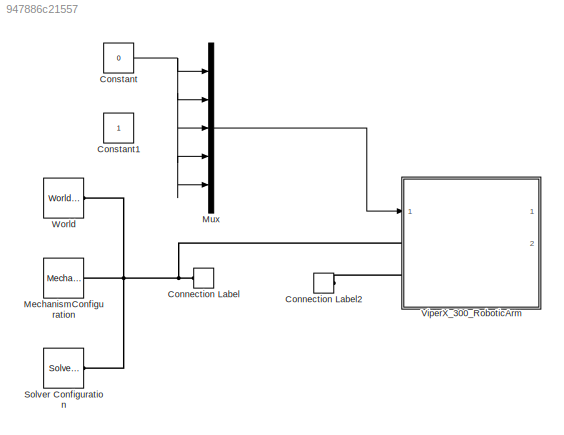
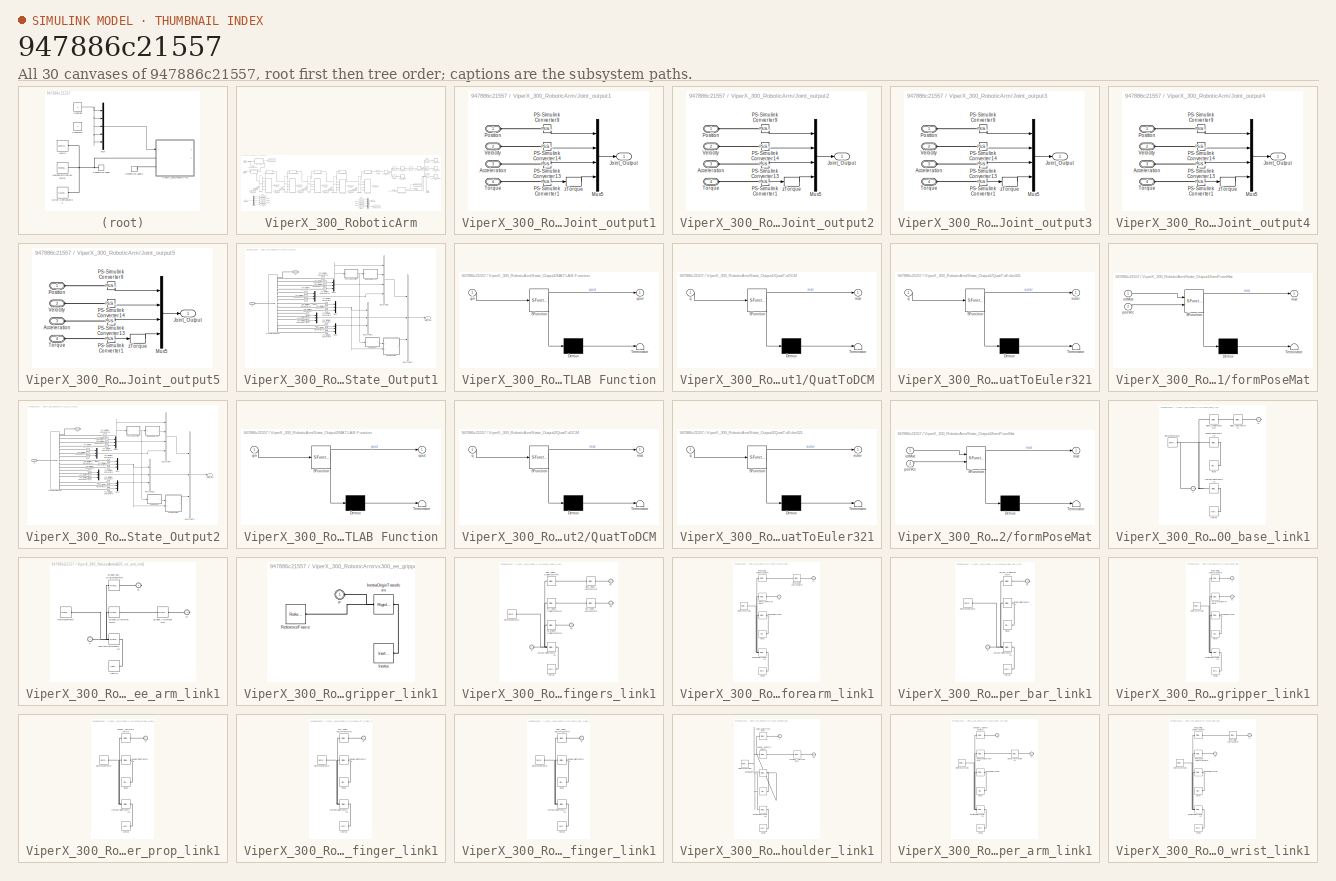
[diagram: thumbnail index - all 30 canvases of the model, root first then tree order]
MODEL slx_947886c21557
KIND model
CONFIG AbsTol = auto
CONFIG EnableMultiTasking = off
CONFIG FixedStep = auto
CONFIG MaxStep = auto
CONFIG MinStep = auto
CONFIG RelTol = 1e-3
CONFIG SampleTimeConstraint = Unconstrained
CONFIG SolverName = VariableStepAuto
CONFIG StartTime = 0.0
CONFIG StopTime = 10.0
BLOCK [ConnectionLabel] Connection Label
  Label = World
  Ports = [0, 0, 0, 0, 0, 1]
BLOCK [ConnectionLabel] Connection Label2
  Label = World
  Ports = [0, 0, 0, 0, 0, 1]
BLOCK [Constant] Constant
  Value = 0
BLOCK [Constant] Constant1
BLOCK [Reference] MechanismConfiguration  REF=sm_lib/Utilities/Mechanism
Configuration
  Ports = [0, 0, 0, 0, 0, 0, 1]
  SourceBlock = sm_lib/Utilities/Mechanism\nConfiguration
  SourceProductBaseCode = MS
  SourceType = Mechanism\nConfiguration
BLOCK [Mux] Mux
  DisplayOption = bar
  Inputs = 5
  Ports = [5, 1]
BLOCK [Reference] Solver Configuration  REF=nesl_utility/Solver
Configuration
  Ports = [0, 0, 0, 0, 0, 0, 1]
  SourceBlock = nesl_utility/Solver\nConfiguration
  SourceProductBaseCode = PW,SS
  SourceType = Solver\nConfiguration
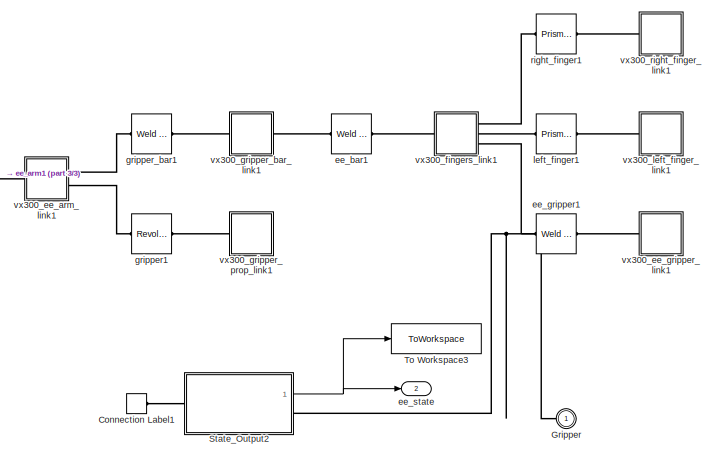
[diagram: ViperX_300_RoboticArm - part 1/3, middle right region]
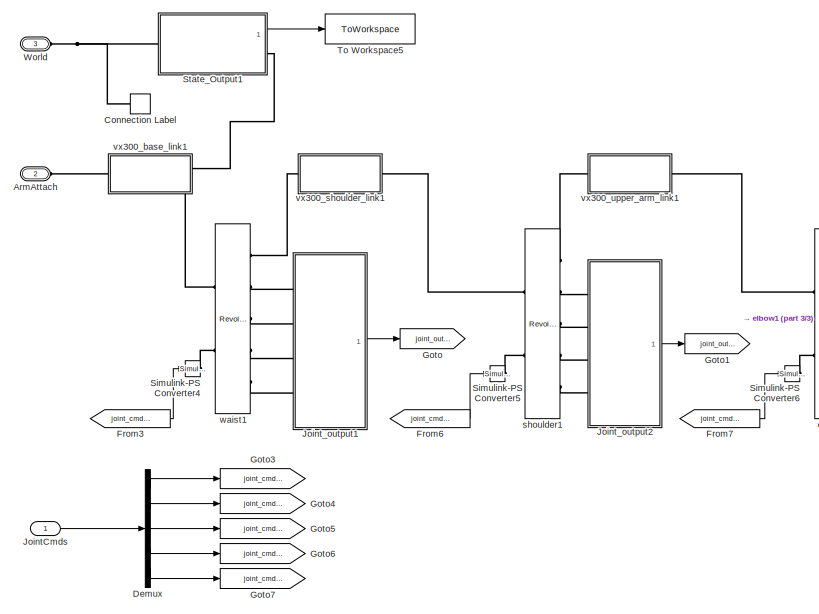
[diagram: ViperX_300_RoboticArm - part 2/3, left side, full height]
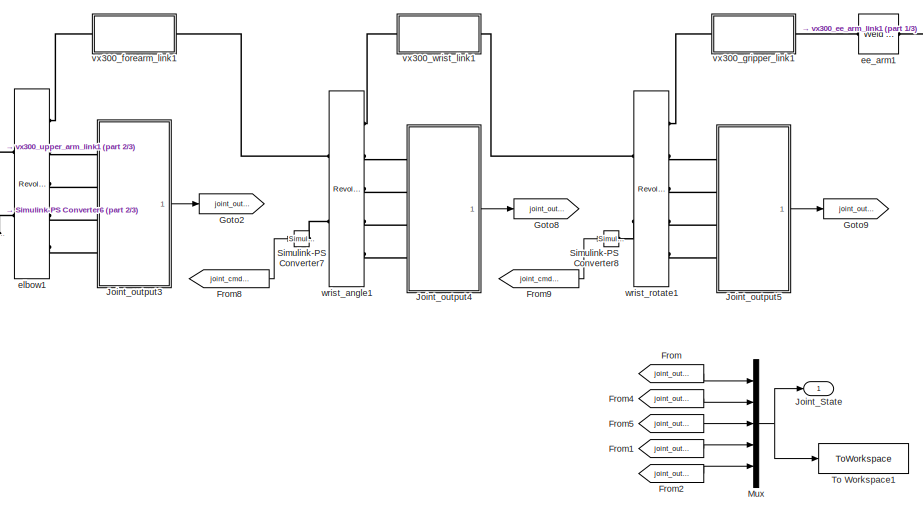
[diagram: ViperX_300_RoboticArm - part 3/3, center side, full height]
BLOCK [SubSystem] ViperX_300_RoboticArm
  Ports = [1, 2, 0, 0, 0, 2, 1]
  RequestExecContextInheritance = off
BLOCK [PMIOPort] ViperX_300_RoboticArm/ArmAttach
  Port = 2
  Side = Left
BLOCK [ConnectionLabel] ViperX_300_RoboticArm/Connection Label
  Label = World
  Ports = [0, 0, 0, 0, 0, 1]
BLOCK [ConnectionLabel] ViperX_300_RoboticArm/Connection Label1
  Label = World
  Ports = [0, 0, 0, 0, 0, 1]
BLOCK [Demux] ViperX_300_RoboticArm/Demux
  Outputs = 5
  Ports = [1, 5]
BLOCK [From] ViperX_300_RoboticArm/From
  GotoTag = joint_out_1
BLOCK [From] ViperX_300_RoboticArm/From1
  GotoTag = joint_out_4
BLOCK [From] ViperX_300_RoboticArm/From2
  GotoTag = joint_out_5
BLOCK [From] ViperX_300_RoboticArm/From3
  GotoTag = joint_cmd_1
BLOCK [From] ViperX_300_RoboticArm/From4
  GotoTag = joint_out_2
BLOCK [From] ViperX_300_RoboticArm/From5
  GotoTag = joint_out_3
BLOCK [From] ViperX_300_RoboticArm/From6
  GotoTag = joint_cmd_2
BLOCK [From] ViperX_300_RoboticArm/From7
  GotoTag = joint_cmd_3
BLOCK [From] ViperX_300_RoboticArm/From8
  GotoTag = joint_cmd_4
BLOCK [From] ViperX_300_RoboticArm/From9
  GotoTag = joint_cmd_5
BLOCK [Goto] ViperX_300_RoboticArm/Goto
  GotoTag = joint_out_1
BLOCK [Goto] ViperX_300_RoboticArm/Goto1
  GotoTag = joint_out_2
BLOCK [Goto] ViperX_300_RoboticArm/Goto2
  GotoTag = joint_out_3
BLOCK [Goto] ViperX_300_RoboticArm/Goto3
  GotoTag = joint_cmd_1
BLOCK [Goto] ViperX_300_RoboticArm/Goto4
  GotoTag = joint_cmd_2
BLOCK [Goto] ViperX_300_RoboticArm/Goto5
  GotoTag = joint_cmd_3
BLOCK [Goto] ViperX_300_RoboticArm/Goto6
  GotoTag = joint_cmd_4
BLOCK [Goto] ViperX_300_RoboticArm/Goto7
  GotoTag = joint_cmd_5
BLOCK [Goto] ViperX_300_RoboticArm/Goto8
  GotoTag = joint_out_4
BLOCK [Goto] ViperX_300_RoboticArm/Goto9
  GotoTag = joint_out_5
BLOCK [PMIOPort] ViperX_300_RoboticArm/Gripper
  Side = Right
BLOCK [Inport] ViperX_300_RoboticArm/JointCmds
BLOCK [Outport] ViperX_300_RoboticArm/Joint_State
BLOCK [SubSystem] ViperX_300_RoboticArm/Joint_output1
  Ports = [0, 1, 0, 0, 0, 4]
  RequestExecContextInheritance = off
BLOCK [PMIOPort] ViperX_300_RoboticArm/Joint_output1/Acceleration
  Port = 3
  Side = Left
BLOCK [Outport] ViperX_300_RoboticArm/Joint_output1/Joint_Output
BLOCK [Mux] ViperX_300_RoboticArm/Joint_output1/Mux5
  DisplayOption = bar
  Ports = [4, 1]
BLOCK [Reference] ViperX_300_RoboticArm/Joint_output1/PS-Simulink Converter1  REF=nesl_utility/PS-Simulink
Converter
  Ports = [0, 1, 0, 0, 0, 1]
  SourceBlock = nesl_utility/PS-Simulink\nConverter
  SourceProductBaseCode = PW,SS
  SourceType = PS-Simulink\nConverter
BLOCK [Reference] ViperX_300_RoboticArm/Joint_output1/PS-Simulink Converter13  REF=nesl_utility/PS-Simulink
Converter
  Ports = [0, 1, 0, 0, 0, 1]
  SourceBlock = nesl_utility/PS-Simulink\nConverter
  SourceProductBaseCode = PW,SS
  SourceType = PS-Simulink\nConverter
BLOCK [Reference] ViperX_300_RoboticArm/Joint_output1/PS-Simulink Converter14  REF=nesl_utility/PS-Simulink
Converter
  Ports = [0, 1, 0, 0, 0, 1]
  SourceBlock = nesl_utility/PS-Simulink\nConverter
  SourceProductBaseCode = PW,SS
  SourceType = PS-Simulink\nConverter
BLOCK [Reference] ViperX_300_RoboticArm/Joint_output1/PS-Simulink Converter9  REF=nesl_utility/PS-Simulink
Converter
  Ports = [0, 1, 0, 0, 0, 1]
  SourceBlock = nesl_utility/PS-Simulink\nConverter
  SourceProductBaseCode = PW,SS
  SourceType = PS-Simulink\nConverter
BLOCK [PMIOPort] ViperX_300_RoboticArm/Joint_output1/Position
  Side = Left
BLOCK [PMIOPort] ViperX_300_RoboticArm/Joint_output1/Torque
  Port = 4
  Side = Left
BLOCK [PMIOPort] ViperX_300_RoboticArm/Joint_output1/Velocity
  Port = 2
  Side = Left
BLOCK [Selector] ViperX_300_RoboticArm/Joint_output1/zTorque
  IndexOptions = Index vector (dialog)
  Indices = 3
  InputPortWidth = 3
  OutputSizes = 1
  Ports = [1, 1]
BLOCK [SubSystem] ViperX_300_RoboticArm/Joint_output2
  Ports = [0, 1, 0, 0, 0, 4]
  RequestExecContextInheritance = off
BLOCK [PMIOPort] ViperX_300_RoboticArm/Joint_output2/Acceleration
  Port = 3
  Side = Left
BLOCK [Outport] ViperX_300_RoboticArm/Joint_output2/Joint_Output
BLOCK [Mux] ViperX_300_RoboticArm/Joint_output2/Mux5
  DisplayOption = bar
  Ports = [4, 1]
BLOCK [Reference] ViperX_300_RoboticArm/Joint_output2/PS-Simulink Converter1  REF=nesl_utility/PS-Simulink
Converter
  Ports = [0, 1, 0, 0, 0, 1]
  SourceBlock = nesl_utility/PS-Simulink\nConverter
  SourceProductBaseCode = PW,SS
  SourceType = PS-Simulink\nConverter
BLOCK [Reference] ViperX_300_RoboticArm/Joint_output2/PS-Simulink Converter13  REF=nesl_utility/PS-Simulink
Converter
  Ports = [0, 1, 0, 0, 0, 1]
  SourceBlock = nesl_utility/PS-Simulink\nConverter
  SourceProductBaseCode = PW,SS
  SourceType = PS-Simulink\nConverter
BLOCK [Reference] ViperX_300_RoboticArm/Joint_output2/PS-Simulink Converter14  REF=nesl_utility/PS-Simulink
Converter
  Ports = [0, 1, 0, 0, 0, 1]
  SourceBlock = nesl_utility/PS-Simulink\nConverter
  SourceProductBaseCode = PW,SS
  SourceType = PS-Simulink\nConverter
BLOCK [Reference] ViperX_300_RoboticArm/Joint_output2/PS-Simulink Converter9  REF=nesl_utility/PS-Simulink
Converter
  Ports = [0, 1, 0, 0, 0, 1]
  SourceBlock = nesl_utility/PS-Simulink\nConverter
  SourceProductBaseCode = PW,SS
  SourceType = PS-Simulink\nConverter
BLOCK [PMIOPort] ViperX_300_RoboticArm/Joint_output2/Position
  Side = Left
BLOCK [PMIOPort] ViperX_300_RoboticArm/Joint_output2/Torque
  Port = 4
  Side = Left
BLOCK [PMIOPort] ViperX_300_RoboticArm/Joint_output2/Velocity
  Port = 2
  Side = Left
BLOCK [Selector] ViperX_300_RoboticArm/Joint_output2/zTorque
  IndexOptions = Index vector (dialog)
  Indices = 3
  InputPortWidth = 3
  OutputSizes = 1
  Ports = [1, 1]
BLOCK [SubSystem] ViperX_300_RoboticArm/Joint_output3
  Ports = [0, 1, 0, 0, 0, 4]
  RequestExecContextInheritance = off
BLOCK [PMIOPort] ViperX_300_RoboticArm/Joint_output3/Acceleration
  Port = 3
  Side = Left
BLOCK [Outport] ViperX_300_RoboticArm/Joint_output3/Joint_Output
BLOCK [Mux] ViperX_300_RoboticArm/Joint_output3/Mux5
  DisplayOption = bar
  Ports = [4, 1]
BLOCK [Reference] ViperX_300_RoboticArm/Joint_output3/PS-Simulink Converter1  REF=nesl_utility/PS-Simulink
Converter
  Ports = [0, 1, 0, 0, 0, 1]
  SourceBlock = nesl_utility/PS-Simulink\nConverter
  SourceProductBaseCode = PW,SS
  SourceType = PS-Simulink\nConverter
BLOCK [Reference] ViperX_300_RoboticArm/Joint_output3/PS-Simulink Converter13  REF=nesl_utility/PS-Simulink
Converter
  Ports = [0, 1, 0, 0, 0, 1]
  SourceBlock = nesl_utility/PS-Simulink\nConverter
  SourceProductBaseCode = PW,SS
  SourceType = PS-Simulink\nConverter
BLOCK [Reference] ViperX_300_RoboticArm/Joint_output3/PS-Simulink Converter14  REF=nesl_utility/PS-Simulink
Converter
  Ports = [0, 1, 0, 0, 0, 1]
  SourceBlock = nesl_utility/PS-Simulink\nConverter
  SourceProductBaseCode = PW,SS
  SourceType = PS-Simulink\nConverter
BLOCK [Reference] ViperX_300_RoboticArm/Joint_output3/PS-Simulink Converter9  REF=nesl_utility/PS-Simulink
Converter
  Ports = [0, 1, 0, 0, 0, 1]
  SourceBlock = nesl_utility/PS-Simulink\nConverter
  SourceProductBaseCode = PW,SS
  SourceType = PS-Simulink\nConverter
BLOCK [PMIOPort] ViperX_300_RoboticArm/Joint_output3/Position
  Side = Left
BLOCK [PMIOPort] ViperX_300_RoboticArm/Joint_output3/Torque
  Port = 4
  Side = Left
BLOCK [PMIOPort] ViperX_300_RoboticArm/Joint_output3/Velocity
  Port = 2
  Side = Left
BLOCK [Selector] ViperX_300_RoboticArm/Joint_output3/zTorque
  IndexOptions = Index vector (dialog)
  Indices = 3
  InputPortWidth = 3
  OutputSizes = 1
  Ports = [1, 1]
BLOCK [SubSystem] ViperX_300_RoboticArm/Joint_output4
  Ports = [0, 1, 0, 0, 0, 4]
  RequestExecContextInheritance = off
BLOCK [PMIOPort] ViperX_300_RoboticArm/Joint_output4/Acceleration
  Port = 3
  Side = Left
BLOCK [Outport] ViperX_300_RoboticArm/Joint_output4/Joint_Output
BLOCK [Mux] ViperX_300_RoboticArm/Joint_output4/Mux5
  DisplayOption = bar
  Ports = [4, 1]
BLOCK [Reference] ViperX_300_RoboticArm/Joint_output4/PS-Simulink Converter1  REF=nesl_utility/PS-Simulink
Converter
  Ports = [0, 1, 0, 0, 0, 1]
  SourceBlock = nesl_utility/PS-Simulink\nConverter
  SourceProductBaseCode = PW,SS
  SourceType = PS-Simulink\nConverter
BLOCK [Reference] ViperX_300_RoboticArm/Joint_output4/PS-Simulink Converter13  REF=nesl_utility/PS-Simulink
Converter
  Ports = [0, 1, 0, 0, 0, 1]
  SourceBlock = nesl_utility/PS-Simulink\nConverter
  SourceProductBaseCode = PW,SS
  SourceType = PS-Simulink\nConverter
BLOCK [Reference] ViperX_300_RoboticArm/Joint_output4/PS-Simulink Converter14  REF=nesl_utility/PS-Simulink
Converter
  Ports = [0, 1, 0, 0, 0, 1]
  SourceBlock = nesl_utility/PS-Simulink\nConverter
  SourceProductBaseCode = PW,SS
  SourceType = PS-Simulink\nConverter
BLOCK [Reference] ViperX_300_RoboticArm/Joint_output4/PS-Simulink Converter9  REF=nesl_utility/PS-Simulink
Converter
  Ports = [0, 1, 0, 0, 0, 1]
  SourceBlock = nesl_utility/PS-Simulink\nConverter
  SourceProductBaseCode = PW,SS
  SourceType = PS-Simulink\nConverter
BLOCK [PMIOPort] ViperX_300_RoboticArm/Joint_output4/Position
  Side = Left
BLOCK [PMIOPort] ViperX_300_RoboticArm/Joint_output4/Torque
  Port = 4
  Side = Left
BLOCK [PMIOPort] ViperX_300_RoboticArm/Joint_output4/Velocity
  Port = 2
  Side = Left
BLOCK [Selector] ViperX_300_RoboticArm/Joint_output4/zTorque
  IndexOptions = Index vector (dialog)
  Indices = 3
  InputPortWidth = 3
  OutputSizes = 1
  Ports = [1, 1]
BLOCK [SubSystem] ViperX_300_RoboticArm/Joint_output5
  Ports = [0, 1, 0, 0, 0, 4]
  RequestExecContextInheritance = off
BLOCK [PMIOPort] ViperX_300_RoboticArm/Joint_output5/Acceleration
  Port = 3
  Side = Left
BLOCK [Outport] ViperX_300_RoboticArm/Joint_output5/Joint_Output
BLOCK [Mux] ViperX_300_RoboticArm/Joint_output5/Mux5
  DisplayOption = bar
  Ports = [4, 1]
BLOCK [Reference] ViperX_300_RoboticArm/Joint_output5/PS-Simulink Converter1  REF=nesl_utility/PS-Simulink
Converter
  Ports = [0, 1, 0, 0, 0, 1]
  SourceBlock = nesl_utility/PS-Simulink\nConverter
  SourceProductBaseCode = PW,SS
  SourceType = PS-Simulink\nConverter
BLOCK [Reference] ViperX_300_RoboticArm/Joint_output5/PS-Simulink Converter13  REF=nesl_utility/PS-Simulink
Converter
  Ports = [0, 1, 0, 0, 0, 1]
  SourceBlock = nesl_utility/PS-Simulink\nConverter
  SourceProductBaseCode = PW,SS
  SourceType = PS-Simulink\nConverter
BLOCK [Reference] ViperX_300_RoboticArm/Joint_output5/PS-Simulink Converter14  REF=nesl_utility/PS-Simulink
Converter
  Ports = [0, 1, 0, 0, 0, 1]
  SourceBlock = nesl_utility/PS-Simulink\nConverter
  SourceProductBaseCode = PW,SS
  SourceType = PS-Simulink\nConverter
BLOCK [Reference] ViperX_300_RoboticArm/Joint_output5/PS-Simulink Converter9  REF=nesl_utility/PS-Simulink
Converter
  Ports = [0, 1, 0, 0, 0, 1]
  SourceBlock = nesl_utility/PS-Simulink\nConverter
  SourceProductBaseCode = PW,SS
  SourceType = PS-Simulink\nConverter
BLOCK [PMIOPort] ViperX_300_RoboticArm/Joint_output5/Position
  Side = Left
BLOCK [PMIOPort] ViperX_300_RoboticArm/Joint_output5/Torque
  Port = 4
  Side = Left
BLOCK [PMIOPort] ViperX_300_RoboticArm/Joint_output5/Velocity
  Port = 2
  Side = Left
BLOCK [Selector] ViperX_300_RoboticArm/Joint_output5/zTorque
  IndexOptions = Index vector (dialog)
  Indices = 3
  InputPortWidth = 3
  OutputSizes = 1
  Ports = [1, 1]
BLOCK [Mux] ViperX_300_RoboticArm/Mux
  DisplayOption = bar
  Inputs = 5
  Ports = [5, 1]
BLOCK [Reference] ViperX_300_RoboticArm/Simulink-PS Converter4  REF=nesl_utility/Simulink-PS
Converter
  Ports = [1, 0, 0, 0, 0, 0, 1]
  SourceBlock = nesl_utility/Simulink-PS\nConverter
  SourceProductBaseCode = PW,SS
  SourceType = Simulink-PS\nConverter
BLOCK [Reference] ViperX_300_RoboticArm/Simulink-PS Converter5  REF=nesl_utility/Simulink-PS
Converter
  Ports = [1, 0, 0, 0, 0, 0, 1]
  SourceBlock = nesl_utility/Simulink-PS\nConverter
  SourceProductBaseCode = PW,SS
  SourceType = Simulink-PS\nConverter
BLOCK [Reference] ViperX_300_RoboticArm/Simulink-PS Converter6  REF=nesl_utility/Simulink-PS
Converter
  Ports = [1, 0, 0, 0, 0, 0, 1]
  SourceBlock = nesl_utility/Simulink-PS\nConverter
  SourceProductBaseCode = PW,SS
  SourceType = Simulink-PS\nConverter
BLOCK [Reference] ViperX_300_RoboticArm/Simulink-PS Converter7  REF=nesl_utility/Simulink-PS
Converter
  Ports = [1, 0, 0, 0, 0, 0, 1]
  SourceBlock = nesl_utility/Simulink-PS\nConverter
  SourceProductBaseCode = PW,SS
  SourceType = Simulink-PS\nConverter
BLOCK [Reference] ViperX_300_RoboticArm/Simulink-PS Converter8  REF=nesl_utility/Simulink-PS
Converter
  Ports = [1, 0, 0, 0, 0, 0, 1]
  SourceBlock = nesl_utility/Simulink-PS\nConverter
  SourceProductBaseCode = PW,SS
  SourceType = Simulink-PS\nConverter
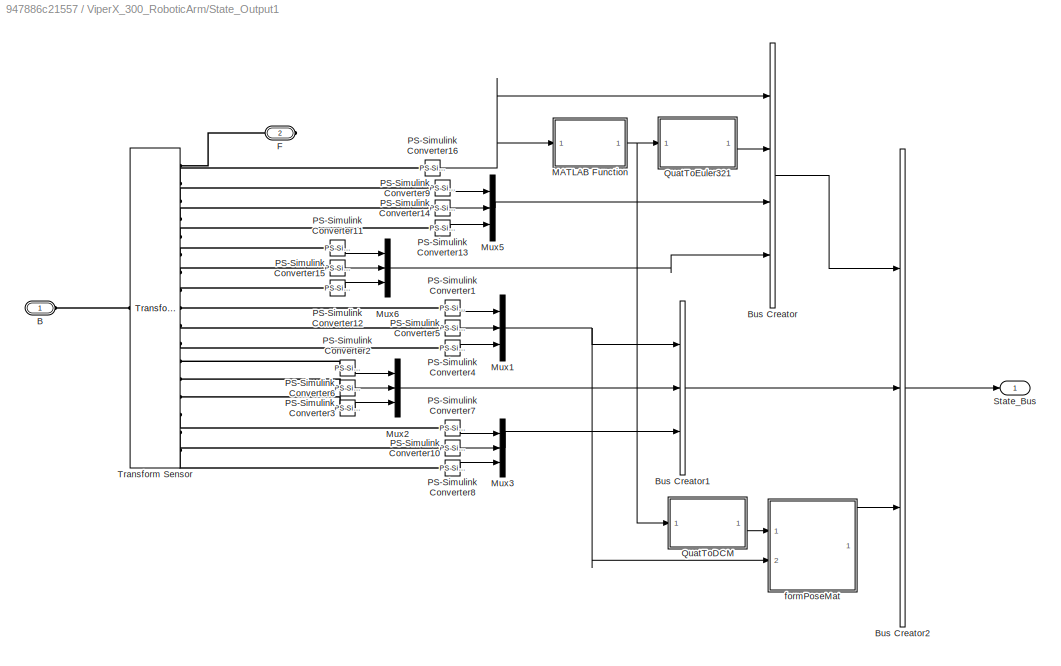
BLOCK [SubSystem] ViperX_300_RoboticArm/State_Output1
  Ports = [0, 1, 0, 0, 0, 1, 1]
  RequestExecContextInheritance = off
BLOCK [PMIOPort] ViperX_300_RoboticArm/State_Output1/B
  Side = Left
BLOCK [BusCreator] ViperX_300_RoboticArm/State_Output1/Bus Creator
  DisplayOption = bar
  InheritFromInputs = off
  Inputs = 4
  OutDataTypeStr = Bus: RotStateBus
  Ports = [4, 1]
BLOCK [BusCreator] ViperX_300_RoboticArm/State_Output1/Bus Creator1
  DisplayOption = bar
  InheritFromInputs = off
  Inputs = 3
  OutDataTypeStr = Bus: TransStateBus
  Ports = [3, 1]
BLOCK [BusCreator] ViperX_300_RoboticArm/State_Output1/Bus Creator2
  DisplayOption = bar
  InheritFromInputs = off
  Inputs = 3
  OutDataTypeStr = Bus: StateBus
  Ports = [3, 1]
BLOCK [PMIOPort] ViperX_300_RoboticArm/State_Output1/F
  Port = 2
  Side = Right
BLOCK [SubSystem] ViperX_300_RoboticArm/State_Output1/MATLAB Function
  ErrorFcn = Stateflow.Translate.translate
  PermitHierarchicalResolution = ExplicitOnly
  Ports = [1, 1]
  RequestExecContextInheritance = off
  SFBlockType = MATLAB Function
  TreatAsAtomicUnit = on
BLOCK [Demux] ViperX_300_RoboticArm/State_Output1/MATLAB Function/ Demux 
  Outputs = 1
  Ports = [1, 1]
BLOCK [S-Function] ViperX_300_RoboticArm/State_Output1/MATLAB Function/ SFunction 
  EnableBusSupport = on
  FunctionName = sf_sfun
  PortCounts = [1 2]
  Ports = [1, 2]
  SFcnIsStateOwnerBlock = off
  SFunctionDeploymentMode = off
  Tag = Stateflow S-Function 19
BLOCK [Terminator] ViperX_300_RoboticArm/State_Output1/MATLAB Function/ Terminator 
BLOCK [Inport] ViperX_300_RoboticArm/State_Output1/MATLAB Function/qin
BLOCK [Outport] ViperX_300_RoboticArm/State_Output1/MATLAB Function/qout
BLOCK [Mux] ViperX_300_RoboticArm/State_Output1/Mux1
  DisplayOption = bar
  Inputs = 3
  Ports = [3, 1]
BLOCK [Mux] ViperX_300_RoboticArm/State_Output1/Mux2
  DisplayOption = bar
  Inputs = 3
  Ports = [3, 1]
BLOCK [Mux] ViperX_300_RoboticArm/State_Output1/Mux3
  DisplayOption = bar
  Inputs = 3
  Ports = [3, 1]
BLOCK [Mux] ViperX_300_RoboticArm/State_Output1/Mux5
  DisplayOption = bar
  Inputs = 3
  Ports = [3, 1]
BLOCK [Mux] ViperX_300_RoboticArm/State_Output1/Mux6
  DisplayOption = bar
  Inputs = 3
  Ports = [3, 1]
BLOCK [Reference] ViperX_300_RoboticArm/State_Output1/PS-Simulink Converter1  REF=nesl_utility/PS-Simulink
Converter
  Ports = [0, 1, 0, 0, 0, 1]
  SourceBlock = nesl_utility/PS-Simulink\nConverter
  SourceProductBaseCode = PW,SS
  SourceType = PS-Simulink\nConverter
BLOCK [Reference] ViperX_300_RoboticArm/State_Output1/PS-Simulink Converter10  REF=nesl_utility/PS-Simulink
Converter
  Ports = [0, 1, 0, 0, 0, 1]
  SourceBlock = nesl_utility/PS-Simulink\nConverter
  SourceProductBaseCode = PW,SS
  SourceType = PS-Simulink\nConverter
BLOCK [Reference] ViperX_300_RoboticArm/State_Output1/PS-Simulink Converter11  REF=nesl_utility/PS-Simulink
Converter
  Ports = [0, 1, 0, 0, 0, 1]
  SourceBlock = nesl_utility/PS-Simulink\nConverter
  SourceProductBaseCode = PW,SS
  SourceType = PS-Simulink\nConverter
BLOCK [Reference] ViperX_300_RoboticArm/State_Output1/PS-Simulink Converter12  REF=nesl_utility/PS-Simulink
Converter
  Ports = [0, 1, 0, 0, 0, 1]
  SourceBlock = nesl_utility/PS-Simulink\nConverter
  SourceProductBaseCode = PW,SS
  SourceType = PS-Simulink\nConverter
BLOCK [Reference] ViperX_300_RoboticArm/State_Output1/PS-Simulink Converter13  REF=nesl_utility/PS-Simulink
Converter
  Ports = [0, 1, 0, 0, 0, 1]
  SourceBlock = nesl_utility/PS-Simulink\nConverter
  SourceProductBaseCode = PW,SS
  SourceType = PS-Simulink\nConverter
BLOCK [Reference] ViperX_300_RoboticArm/State_Output1/PS-Simulink Converter14  REF=nesl_utility/PS-Simulink
Converter
  Ports = [0, 1, 0, 0, 0, 1]
  SourceBlock = nesl_utility/PS-Simulink\nConverter
  SourceProductBaseCode = PW,SS
  SourceType = PS-Simulink\nConverter
BLOCK [Reference] ViperX_300_RoboticArm/State_Output1/PS-Simulink Converter15  REF=nesl_utility/PS-Simulink
Converter
  Ports = [0, 1, 0, 0, 0, 1]
  SourceBlock = nesl_utility/PS-Simulink\nConverter
  SourceProductBaseCode = PW,SS
  SourceType = PS-Simulink\nConverter
BLOCK [Reference] ViperX_300_RoboticArm/State_Output1/PS-Simulink Converter16  REF=nesl_utility/PS-Simulink
Converter
  Ports = [0, 1, 0, 0, 0, 1]
  SourceBlock = nesl_utility/PS-Simulink\nConverter
  SourceProductBaseCode = PW,SS
  SourceType = PS-Simulink\nConverter
BLOCK [Reference] ViperX_300_RoboticArm/State_Output1/PS-Simulink Converter2  REF=nesl_utility/PS-Simulink
Converter
  Ports = [0, 1, 0, 0, 0, 1]
  SourceBlock = nesl_utility/PS-Simulink\nConverter
  SourceProductBaseCode = PW,SS
  SourceType = PS-Simulink\nConverter
BLOCK [Reference] ViperX_300_RoboticArm/State_Output1/PS-Simulink Converter3  REF=nesl_utility/PS-Simulink
Converter
  Ports = [0, 1, 0, 0, 0, 1]
  SourceBlock = nesl_utility/PS-Simulink\nConverter
  SourceProductBaseCode = PW,SS
  SourceType = PS-Simulink\nConverter
BLOCK [Reference] ViperX_300_RoboticArm/State_Output1/PS-Simulink Converter4  REF=nesl_utility/PS-Simulink
Converter
  Ports = [0, 1, 0, 0, 0, 1]
  SourceBlock = nesl_utility/PS-Simulink\nConverter
  SourceProductBaseCode = PW,SS
  SourceType = PS-Simulink\nConverter
BLOCK [Reference] ViperX_300_RoboticArm/State_Output1/PS-Simulink Converter5  REF=nesl_utility/PS-Simulink
Converter
  Ports = [0, 1, 0, 0, 0, 1]
  SourceBlock = nesl_utility/PS-Simulink\nConverter
  SourceProductBaseCode = PW,SS
  SourceType = PS-Simulink\nConverter
BLOCK [Reference] ViperX_300_RoboticArm/State_Output1/PS-Simulink Converter6  REF=nesl_utility/PS-Simulink
Converter
  Ports = [0, 1, 0, 0, 0, 1]
  SourceBlock = nesl_utility/PS-Simulink\nConverter
  SourceProductBaseCode = PW,SS
  SourceType = PS-Simulink\nConverter
BLOCK [Reference] ViperX_300_RoboticArm/State_Output1/PS-Simulink Converter7  REF=nesl_utility/PS-Simulink
Converter
  Ports = [0, 1, 0, 0, 0, 1]
  SourceBlock = nesl_utility/PS-Simulink\nConverter
  SourceProductBaseCode = PW,SS
  SourceType = PS-Simulink\nConverter
BLOCK [Reference] ViperX_300_RoboticArm/State_Output1/PS-Simulink Converter8  REF=nesl_utility/PS-Simulink
Converter
  Ports = [0, 1, 0, 0, 0, 1]
  SourceBlock = nesl_utility/PS-Simulink\nConverter
  SourceProductBaseCode = PW,SS
  SourceType = PS-Simulink\nConverter
BLOCK [Reference] ViperX_300_RoboticArm/State_Output1/PS-Simulink Converter9  REF=nesl_utility/PS-Simulink
Converter
  Ports = [0, 1, 0, 0, 0, 1]
  SourceBlock = nesl_utility/PS-Simulink\nConverter
  SourceProductBaseCode = PW,SS
  SourceType = PS-Simulink\nConverter
BLOCK [SubSystem] ViperX_300_RoboticArm/State_Output1/QuatToDCM
  ErrorFcn = Stateflow.Translate.translate
  PermitHierarchicalResolution = ExplicitOnly
  Ports = [1, 1]
  RequestExecContextInheritance = off
  SFBlockType = MATLAB Function
  TreatAsAtomicUnit = on
BLOCK [Demux] ViperX_300_RoboticArm/State_Output1/QuatToDCM/ Demux 
  Outputs = 1
  Ports = [1, 1]
BLOCK [S-Function] ViperX_300_RoboticArm/State_Output1/QuatToDCM/ SFunction 
  EnableBusSupport = on
  FunctionName = sf_sfun
  PortCounts = [1 2]
  Ports = [1, 2]
  SFcnIsStateOwnerBlock = off
  SFunctionDeploymentMode = off
  Tag = Stateflow S-Function 20
BLOCK [Terminator] ViperX_300_RoboticArm/State_Output1/QuatToDCM/ Terminator 
BLOCK [Outport] ViperX_300_RoboticArm/State_Output1/QuatToDCM/mat
BLOCK [Inport] ViperX_300_RoboticArm/State_Output1/QuatToDCM/q
BLOCK [SubSystem] ViperX_300_RoboticArm/State_Output1/QuatToEuler321
  ErrorFcn = Stateflow.Translate.translate
  PermitHierarchicalResolution = ExplicitOnly
  Ports = [1, 1]
  RequestExecContextInheritance = off
  SFBlockType = MATLAB Function
  TreatAsAtomicUnit = on
BLOCK [Demux] ViperX_300_RoboticArm/State_Output1/QuatToEuler321/ Demux 
  Outputs = 1
  Ports = [1, 1]
BLOCK [S-Function] ViperX_300_RoboticArm/State_Output1/QuatToEuler321/ SFunction 
  EnableBusSupport = on
  FunctionName = sf_sfun
  PortCounts = [1 2]
  Ports = [1, 2]
  SFcnIsStateOwnerBlock = off
  SFunctionDeploymentMode = off
  Tag = Stateflow S-Function 21
BLOCK [Terminator] ViperX_300_RoboticArm/State_Output1/QuatToEuler321/ Terminator 
BLOCK [Outport] ViperX_300_RoboticArm/State_Output1/QuatToEuler321/euler
BLOCK [Inport] ViperX_300_RoboticArm/State_Output1/QuatToEuler321/q
BLOCK [Outport] ViperX_300_RoboticArm/State_Output1/State_Bus
BLOCK [Reference] ViperX_300_RoboticArm/State_Output1/Transform Sensor  REF=sm_lib/Frames and
Transforms/Transform
Sensor
  Ports = [0, 0, 0, 0, 0, 1, 17]
  SourceBlock = sm_lib/Frames and\nTransforms/Transform\nSensor
  SourceProductBaseCode = MS
  SourceType = Transform\nSensor
BLOCK [SubSystem] ViperX_300_RoboticArm/State_Output1/formPoseMat
  ErrorFcn = Stateflow.Translate.translate
  PermitHierarchicalResolution = ExplicitOnly
  Ports = [2, 1]
  RequestExecContextInheritance = off
  SFBlockType = MATLAB Function
  TreatAsAtomicUnit = on
BLOCK [Demux] ViperX_300_RoboticArm/State_Output1/formPoseMat/ Demux 
  Outputs = 1
  Ports = [1, 1]
BLOCK [S-Function] ViperX_300_RoboticArm/State_Output1/formPoseMat/ SFunction 
  EnableBusSupport = on
  FunctionName = sf_sfun
  PortCounts = [2 2]
  Ports = [2, 2]
  SFcnIsStateOwnerBlock = off
  SFunctionDeploymentMode = off
  Tag = Stateflow S-Function 22
BLOCK [Terminator] ViperX_300_RoboticArm/State_Output1/formPoseMat/ Terminator 
BLOCK [Outport] ViperX_300_RoboticArm/State_Output1/formPoseMat/mat
BLOCK [Inport] ViperX_300_RoboticArm/State_Output1/formPoseMat/posVec
  Port = 2
BLOCK [Inport] ViperX_300_RoboticArm/State_Output1/formPoseMat/rotMat
BLOCK [SubSystem] ViperX_300_RoboticArm/State_Output2
  Ports = [0, 1, 0, 0, 0, 1, 1]
  RequestExecContextInheritance = off
BLOCK [PMIOPort] ViperX_300_RoboticArm/State_Output2/B
  Side = Left
BLOCK [BusCreator] ViperX_300_RoboticArm/State_Output2/Bus Creator
  DisplayOption = bar
  InheritFromInputs = off
  Inputs = 4
  OutDataTypeStr = Bus: RotStateBus
  Ports = [4, 1]
BLOCK [BusCreator] ViperX_300_RoboticArm/State_Output2/Bus Creator1
  DisplayOption = bar
  InheritFromInputs = off
  Inputs = 3
  OutDataTypeStr = Bus: TransStateBus
  Ports = [3, 1]
BLOCK [BusCreator] ViperX_300_RoboticArm/State_Output2/Bus Creator2
  DisplayOption = bar
  InheritFromInputs = off
  Inputs = 3
  OutDataTypeStr = Bus: StateBus
  Ports = [3, 1]
BLOCK [PMIOPort] ViperX_300_RoboticArm/State_Output2/F
  Port = 2
  Side = Right
BLOCK [SubSystem] ViperX_300_RoboticArm/State_Output2/MATLAB Function
  ErrorFcn = Stateflow.Translate.translate
  PermitHierarchicalResolution = ExplicitOnly
  Ports = [1, 1]
  RequestExecContextInheritance = off
  SFBlockType = MATLAB Function
  TreatAsAtomicUnit = on
BLOCK [Demux] ViperX_300_RoboticArm/State_Output2/MATLAB Function/ Demux 
  Outputs = 1
  Ports = [1, 1]
BLOCK [S-Function] ViperX_300_RoboticArm/State_Output2/MATLAB Function/ SFunction 
  EnableBusSupport = on
  FunctionName = sf_sfun
  PortCounts = [1 2]
  Ports = [1, 2]
  SFcnIsStateOwnerBlock = off
  SFunctionDeploymentMode = off
  Tag = Stateflow S-Function 3
BLOCK [Terminator] ViperX_300_RoboticArm/State_Output2/MATLAB Function/ Terminator 
BLOCK [Inport] ViperX_300_RoboticArm/State_Output2/MATLAB Function/qin
BLOCK [Outport] ViperX_300_RoboticArm/State_Output2/MATLAB Function/qout
BLOCK [Mux] ViperX_300_RoboticArm/State_Output2/Mux1
  DisplayOption = bar
  Inputs = 3
  Ports = [3, 1]
BLOCK [Mux] ViperX_300_RoboticArm/State_Output2/Mux2
  DisplayOption = bar
  Inputs = 3
  Ports = [3, 1]
BLOCK [Mux] ViperX_300_RoboticArm/State_Output2/Mux3
  DisplayOption = bar
  Inputs = 3
  Ports = [3, 1]
BLOCK [Mux] ViperX_300_RoboticArm/State_Output2/Mux5
  DisplayOption = bar
  Inputs = 3
  Ports = [3, 1]
BLOCK [Mux] ViperX_300_RoboticArm/State_Output2/Mux6
  DisplayOption = bar
  Inputs = 3
  Ports = [3, 1]
BLOCK [Reference] ViperX_300_RoboticArm/State_Output2/PS-Simulink Converter1  REF=nesl_utility/PS-Simulink
Converter
  Ports = [0, 1, 0, 0, 0, 1]
  SourceBlock = nesl_utility/PS-Simulink\nConverter
  SourceProductBaseCode = PW,SS
  SourceType = PS-Simulink\nConverter
BLOCK [Reference] ViperX_300_RoboticArm/State_Output2/PS-Simulink Converter10  REF=nesl_utility/PS-Simulink
Converter
  Ports = [0, 1, 0, 0, 0, 1]
  SourceBlock = nesl_utility/PS-Simulink\nConverter
  SourceProductBaseCode = PW,SS
  SourceType = PS-Simulink\nConverter
BLOCK [Reference] ViperX_300_RoboticArm/State_Output2/PS-Simulink Converter11  REF=nesl_utility/PS-Simulink
Converter
  Ports = [0, 1, 0, 0, 0, 1]
  SourceBlock = nesl_utility/PS-Simulink\nConverter
  SourceProductBaseCode = PW,SS
  SourceType = PS-Simulink\nConverter
BLOCK [Reference] ViperX_300_RoboticArm/State_Output2/PS-Simulink Converter12  REF=nesl_utility/PS-Simulink
Converter
  Ports = [0, 1, 0, 0, 0, 1]
  SourceBlock = nesl_utility/PS-Simulink\nConverter
  SourceProductBaseCode = PW,SS
  SourceType = PS-Simulink\nConverter
BLOCK [Reference] ViperX_300_RoboticArm/State_Output2/PS-Simulink Converter13  REF=nesl_utility/PS-Simulink
Converter
  Ports = [0, 1, 0, 0, 0, 1]
  SourceBlock = nesl_utility/PS-Simulink\nConverter
  SourceProductBaseCode = PW,SS
  SourceType = PS-Simulink\nConverter
BLOCK [Reference] ViperX_300_RoboticArm/State_Output2/PS-Simulink Converter14  REF=nesl_utility/PS-Simulink
Converter
  Ports = [0, 1, 0, 0, 0, 1]
  SourceBlock = nesl_utility/PS-Simulink\nConverter
  SourceProductBaseCode = PW,SS
  SourceType = PS-Simulink\nConverter
BLOCK [Reference] ViperX_300_RoboticArm/State_Output2/PS-Simulink Converter15  REF=nesl_utility/PS-Simulink
Converter
  Ports = [0, 1, 0, 0, 0, 1]
  SourceBlock = nesl_utility/PS-Simulink\nConverter
  SourceProductBaseCode = PW,SS
  SourceType = PS-Simulink\nConverter
BLOCK [Reference] ViperX_300_RoboticArm/State_Output2/PS-Simulink Converter16  REF=nesl_utility/PS-Simulink
Converter
  Ports = [0, 1, 0, 0, 0, 1]
  SourceBlock = nesl_utility/PS-Simulink\nConverter
  SourceProductBaseCode = PW,SS
  SourceType = PS-Simulink\nConverter
BLOCK [Reference] ViperX_300_RoboticArm/State_Output2/PS-Simulink Converter2  REF=nesl_utility/PS-Simulink
Converter
  Ports = [0, 1, 0, 0, 0, 1]
  SourceBlock = nesl_utility/PS-Simulink\nConverter
  SourceProductBaseCode = PW,SS
  SourceType = PS-Simulink\nConverter
BLOCK [Reference] ViperX_300_RoboticArm/State_Output2/PS-Simulink Converter3  REF=nesl_utility/PS-Simulink
Converter
  Ports = [0, 1, 0, 0, 0, 1]
  SourceBlock = nesl_utility/PS-Simulink\nConverter
  SourceProductBaseCode = PW,SS
  SourceType = PS-Simulink\nConverter
BLOCK [Reference] ViperX_300_RoboticArm/State_Output2/PS-Simulink Converter4  REF=nesl_utility/PS-Simulink
Converter
  Ports = [0, 1, 0, 0, 0, 1]
  SourceBlock = nesl_utility/PS-Simulink\nConverter
  SourceProductBaseCode = PW,SS
  SourceType = PS-Simulink\nConverter
BLOCK [Reference] ViperX_300_RoboticArm/State_Output2/PS-Simulink Converter5  REF=nesl_utility/PS-Simulink
Converter
  Ports = [0, 1, 0, 0, 0, 1]
  SourceBlock = nesl_utility/PS-Simulink\nConverter
  SourceProductBaseCode = PW,SS
  SourceType = PS-Simulink\nConverter
BLOCK [Reference] ViperX_300_RoboticArm/State_Output2/PS-Simulink Converter6  REF=nesl_utility/PS-Simulink
Converter
  Ports = [0, 1, 0, 0, 0, 1]
  SourceBlock = nesl_utility/PS-Simulink\nConverter
  SourceProductBaseCode = PW,SS
  SourceType = PS-Simulink\nConverter
BLOCK [Reference] ViperX_300_RoboticArm/State_Output2/PS-Simulink Converter7  REF=nesl_utility/PS-Simulink
Converter
  Ports = [0, 1, 0, 0, 0, 1]
  SourceBlock = nesl_utility/PS-Simulink\nConverter
  SourceProductBaseCode = PW,SS
  SourceType = PS-Simulink\nConverter
BLOCK [Reference] ViperX_300_RoboticArm/State_Output2/PS-Simulink Converter8  REF=nesl_utility/PS-Simulink
Converter
  Ports = [0, 1, 0, 0, 0, 1]
  SourceBlock = nesl_utility/PS-Simulink\nConverter
  SourceProductBaseCode = PW,SS
  SourceType = PS-Simulink\nConverter
BLOCK [Reference] ViperX_300_RoboticArm/State_Output2/PS-Simulink Converter9  REF=nesl_utility/PS-Simulink
Converter
  Ports = [0, 1, 0, 0, 0, 1]
  SourceBlock = nesl_utility/PS-Simulink\nConverter
  SourceProductBaseCode = PW,SS
  SourceType = PS-Simulink\nConverter
BLOCK [SubSystem] ViperX_300_RoboticArm/State_Output2/QuatToDCM
  ErrorFcn = Stateflow.Translate.translate
  PermitHierarchicalResolution = ExplicitOnly
  Ports = [1, 1]
  RequestExecContextInheritance = off
  SFBlockType = MATLAB Function
  TreatAsAtomicUnit = on
BLOCK [Demux] ViperX_300_RoboticArm/State_Output2/QuatToDCM/ Demux 
  Outputs = 1
  Ports = [1, 1]
BLOCK [S-Function] ViperX_300_RoboticArm/State_Output2/QuatToDCM/ SFunction 
  EnableBusSupport = on
  FunctionName = sf_sfun
  PortCounts = [1 2]
  Ports = [1, 2]
  SFcnIsStateOwnerBlock = off
  SFunctionDeploymentMode = off
  Tag = Stateflow S-Function 4
BLOCK [Terminator] ViperX_300_RoboticArm/State_Output2/QuatToDCM/ Terminator 
BLOCK [Outport] ViperX_300_RoboticArm/State_Output2/QuatToDCM/mat
BLOCK [Inport] ViperX_300_RoboticArm/State_Output2/QuatToDCM/q
BLOCK [SubSystem] ViperX_300_RoboticArm/State_Output2/QuatToEuler321
  ErrorFcn = Stateflow.Translate.translate
  PermitHierarchicalResolution = ExplicitOnly
  Ports = [1, 1]
  RequestExecContextInheritance = off
  SFBlockType = MATLAB Function
  TreatAsAtomicUnit = on
BLOCK [Demux] ViperX_300_RoboticArm/State_Output2/QuatToEuler321/ Demux 
  Outputs = 1
  Ports = [1, 1]
BLOCK [S-Function] ViperX_300_RoboticArm/State_Output2/QuatToEuler321/ SFunction 
  EnableBusSupport = on
  FunctionName = sf_sfun
  PortCounts = [1 2]
  Ports = [1, 2]
  SFcnIsStateOwnerBlock = off
  SFunctionDeploymentMode = off
  Tag = Stateflow S-Function 17
BLOCK [Terminator] ViperX_300_RoboticArm/State_Output2/QuatToEuler321/ Terminator 
BLOCK [Outport] ViperX_300_RoboticArm/State_Output2/QuatToEuler321/euler
BLOCK [Inport] ViperX_300_RoboticArm/State_Output2/QuatToEuler321/q
BLOCK [Outport] ViperX_300_RoboticArm/State_Output2/State_Bus
BLOCK [Reference] ViperX_300_RoboticArm/State_Output2/Transform Sensor  REF=sm_lib/Frames and
Transforms/Transform
Sensor
  Ports = [0, 0, 0, 0, 0, 1, 17]
  SourceBlock = sm_lib/Frames and\nTransforms/Transform\nSensor
  SourceProductBaseCode = MS
  SourceType = Transform\nSensor
BLOCK [SubSystem] ViperX_300_RoboticArm/State_Output2/formPoseMat
  ErrorFcn = Stateflow.Translate.translate
  PermitHierarchicalResolution = ExplicitOnly
  Ports = [2, 1]
  RequestExecContextInheritance = off
  SFBlockType = MATLAB Function
  TreatAsAtomicUnit = on
BLOCK [Demux] ViperX_300_RoboticArm/State_Output2/formPoseMat/ Demux 
  Outputs = 1
  Ports = [1, 1]
BLOCK [S-Function] ViperX_300_RoboticArm/State_Output2/formPoseMat/ SFunction 
  EnableBusSupport = on
  FunctionName = sf_sfun
  PortCounts = [2 2]
  Ports = [2, 2]
  SFcnIsStateOwnerBlock = off
  SFunctionDeploymentMode = off
  Tag = Stateflow S-Function 18
BLOCK [Terminator] ViperX_300_RoboticArm/State_Output2/formPoseMat/ Terminator 
BLOCK [Outport] ViperX_300_RoboticArm/State_Output2/formPoseMat/mat
BLOCK [Inport] ViperX_300_RoboticArm/State_Output2/formPoseMat/posVec
  Port = 2
BLOCK [Inport] ViperX_300_RoboticArm/State_Output2/formPoseMat/rotMat
BLOCK [ToWorkspace] ViperX_300_RoboticArm/To Workspace1
  FixptAsFi = on
  MaxDataPoints = inf
  Ports = [1]
  SampleTime = -1
  SaveFormat = Timeseries
  VariableName = joint_state
BLOCK [ToWorkspace] ViperX_300_RoboticArm/To Workspace3
  FixptAsFi = on
  MaxDataPoints = inf
  Ports = [1]
  SampleTime = -1
  SaveFormat = Timeseries
  VariableName = ee_state
BLOCK [ToWorkspace] ViperX_300_RoboticArm/To Workspace5
  FixptAsFi = on
  MaxDataPoints = inf
  Ports = [1]
  SampleTime = -1
  SaveFormat = Timeseries
  VariableName = armbase_state
BLOCK [PMIOPort] ViperX_300_RoboticArm/World
  Port = 3
  Side = Left
BLOCK [Reference] ViperX_300_RoboticArm/ee_arm1  REF=sm_lib/Joints/Weld Joint
  Ports = [0, 0, 0, 0, 0, 1, 1]
  SourceBlock = sm_lib/Joints/Weld Joint
  SourceProductBaseCode = MS
  SourceType = Weld Joint
BLOCK [Reference] ViperX_300_RoboticArm/ee_bar1  REF=sm_lib/Joints/Weld Joint
  Ports = [0, 0, 0, 0, 0, 1, 1]
  SourceBlock = sm_lib/Joints/Weld Joint
  SourceProductBaseCode = MS
  SourceType = Weld Joint
BLOCK [Reference] ViperX_300_RoboticArm/ee_gripper1  REF=sm_lib/Joints/Weld Joint
  Ports = [0, 0, 0, 0, 0, 1, 1]
  SourceBlock = sm_lib/Joints/Weld Joint
  SourceProductBaseCode = MS
  SourceType = Weld Joint
BLOCK [Outport] ViperX_300_RoboticArm/ee_state
  Port = 2
BLOCK [Reference] ViperX_300_RoboticArm/elbow1  REF=sm_lib/Joints/Revolute Joint
  Ports = [0, 0, 0, 0, 0, 2, 5]
  SourceBlock = sm_lib/Joints/Revolute Joint
  SourceProductBaseCode = MS
  SourceType = Revolute Joint
BLOCK [Reference] ViperX_300_RoboticArm/gripper1  REF=sm_lib/Joints/Revolute Joint
  Ports = [0, 0, 0, 0, 0, 1, 1]
  SourceBlock = sm_lib/Joints/Revolute Joint
  SourceProductBaseCode = MS
  SourceType = Revolute Joint
BLOCK [Reference] ViperX_300_RoboticArm/gripper_bar1  REF=sm_lib/Joints/Weld Joint
  Ports = [0, 0, 0, 0, 0, 1, 1]
  SourceBlock = sm_lib/Joints/Weld Joint
  SourceProductBaseCode = MS
  SourceType = Weld Joint
BLOCK [Reference] ViperX_300_RoboticArm/left_finger1  REF=sm_lib/Joints/Prismatic
Joint
  Ports = [0, 0, 0, 0, 0, 1, 1]
  SourceBlock = sm_lib/Joints/Prismatic\nJoint
  SourceProductBaseCode = MS
  SourceType = Prismatic\nJoint
BLOCK [Reference] ViperX_300_RoboticArm/right_finger1  REF=sm_lib/Joints/Prismatic
Joint
  Ports = [0, 0, 0, 0, 0, 1, 1]
  SourceBlock = sm_lib/Joints/Prismatic\nJoint
  SourceProductBaseCode = MS
  SourceType = Prismatic\nJoint
BLOCK [Reference] ViperX_300_RoboticArm/shoulder1  REF=sm_lib/Joints/Revolute Joint
  Ports = [0, 0, 0, 0, 0, 2, 5]
  SourceBlock = sm_lib/Joints/Revolute Joint
  SourceProductBaseCode = MS
  SourceType = Revolute Joint
BLOCK [SubSystem] ViperX_300_RoboticArm/vx300_base_link1
  Ports = [0, 0, 0, 0, 0, 1, 1]
  RequestExecContextInheritance = off
BLOCK [PMIOPort] ViperX_300_RoboticArm/vx300_base_link1/F
  Side = Left
BLOCK [PMIOPort] ViperX_300_RoboticArm/vx300_base_link1/F1
  Port = 2
  Side = Right
BLOCK [Reference] ViperX_300_RoboticArm/vx300_base_link1/Inertia  REF=sm_lib/Body Elements/Inertia
  Ports = [0, 0, 0, 0, 0, 0, 1]
  SourceBlock = sm_lib/Body Elements/Inertia
  SourceProductBaseCode = MS
  SourceType = Inertia
BLOCK [Reference] ViperX_300_RoboticArm/vx300_base_link1/InertiaOriginTransform  REF=sm_lib/Frames and
Transforms/Rigid
Transform
  Ports = [0, 0, 0, 0, 0, 1, 1]
  SourceBlock = sm_lib/Frames and\nTransforms/Rigid\nTransform
  SourceProductBaseCode = MS
  SourceType = Rigid\nTransform
BLOCK [Reference] ViperX_300_RoboticArm/vx300_base_link1/ReferenceFrame  REF=sm_lib/Frames and
Transforms/Reference
Frame
  Ports = [0, 0, 0, 0, 0, 0, 1]
  SourceBlock = sm_lib/Frames and\nTransforms/Reference\nFrame
  SourceProductBaseCode = MS
  SourceType = Reference\nFrame
BLOCK [Reference] ViperX_300_RoboticArm/vx300_base_link1/Visual  REF=sm_lib/Body Elements/File Solid
  Ports = [0, 0, 0, 0, 0, 0, 1]
  SourceBlock = sm_lib/Body Elements/File Solid
  SourceProductBaseCode = MS
  SourceType = File Solid
BLOCK [Reference] ViperX_300_RoboticArm/vx300_base_link1/VisualOriginTransform  REF=sm_lib/Frames and
Transforms/Rigid
Transform
  Ports = [0, 0, 0, 0, 0, 1, 1]
  SourceBlock = sm_lib/Frames and\nTransforms/Rigid\nTransform
  SourceProductBaseCode = MS
  SourceType = Rigid\nTransform
BLOCK [Reference] ViperX_300_RoboticArm/vx300_base_link1/waist_AxisTransform  REF=sm_lib/Frames and
Transforms/Rigid
Transform
  Ports = [0, 0, 0, 0, 0, 1, 1]
  SourceBlock = sm_lib/Frames and\nTransforms/Rigid\nTransform
  SourceProductBaseCode = MS
  SourceType = Rigid\nTransform
BLOCK [Reference] ViperX_300_RoboticArm/vx300_base_link1/waist_OriginTransform  REF=sm_lib/Frames and
Transforms/Rigid
Transform
  Ports = [0, 0, 0, 0, 0, 1, 1]
  SourceBlock = sm_lib/Frames and\nTransforms/Rigid\nTransform
  SourceProductBaseCode = MS
  SourceType = Rigid\nTransform
BLOCK [SubSystem] ViperX_300_RoboticArm/vx300_ee_arm_link1
  Ports = [0, 0, 0, 0, 0, 1, 2]
  RequestExecContextInheritance = off
BLOCK [PMIOPort] ViperX_300_RoboticArm/vx300_ee_arm_link1/F
  Side = Left
BLOCK [PMIOPort] ViperX_300_RoboticArm/vx300_ee_arm_link1/F1
  Port = 3
  Side = Right
BLOCK [PMIOPort] ViperX_300_RoboticArm/vx300_ee_arm_link1/F2
  Port = 2
  Side = Right
BLOCK [Reference] ViperX_300_RoboticArm/vx300_ee_arm_link1/Inertia  REF=sm_lib/Body Elements/Inertia
  Ports = [0, 0, 0, 0, 0, 0, 1]
  SourceBlock = sm_lib/Body Elements/Inertia
  SourceProductBaseCode = MS
  SourceType = Inertia
BLOCK [Reference] ViperX_300_RoboticArm/vx300_ee_arm_link1/InertiaOriginTransform  REF=sm_lib/Frames and
Transforms/Rigid
Transform
  Ports = [0, 0, 0, 0, 0, 1, 1]
  SourceBlock = sm_lib/Frames and\nTransforms/Rigid\nTransform
  SourceProductBaseCode = MS
  SourceType = Rigid\nTransform
BLOCK [Reference] ViperX_300_RoboticArm/vx300_ee_arm_link1/ReferenceFrame  REF=sm_lib/Frames and
Transforms/Reference
Frame
  Ports = [0, 0, 0, 0, 0, 0, 1]
  SourceBlock = sm_lib/Frames and\nTransforms/Reference\nFrame
  SourceProductBaseCode = MS
  SourceType = Reference\nFrame
BLOCK [Reference] ViperX_300_RoboticArm/vx300_ee_arm_link1/gripper_AxisTransform  REF=sm_lib/Frames and
Transforms/Rigid
Transform
  Ports = [0, 0, 0, 0, 0, 1, 1]
  SourceBlock = sm_lib/Frames and\nTransforms/Rigid\nTransform
  SourceProductBaseCode = MS
  SourceType = Rigid\nTransform
BLOCK [Reference] ViperX_300_RoboticArm/vx300_ee_arm_link1/gripper_OriginTransform  REF=sm_lib/Frames and
Transforms/Rigid
Transform
  Ports = [0, 0, 0, 0, 0, 1, 1]
  SourceBlock = sm_lib/Frames and\nTransforms/Rigid\nTransform
  SourceProductBaseCode = MS
  SourceType = Rigid\nTransform
BLOCK [Reference] ViperX_300_RoboticArm/vx300_ee_arm_link1/gripper_bar_OriginTransform  REF=sm_lib/Frames and
Transforms/Rigid
Transform
  Ports = [0, 0, 0, 0, 0, 1, 1]
  SourceBlock = sm_lib/Frames and\nTransforms/Rigid\nTransform
  SourceProductBaseCode = MS
  SourceType = Rigid\nTransform
BLOCK [SubSystem] ViperX_300_RoboticArm/vx300_ee_gripper_link1
  Ports = [0, 0, 0, 0, 0, 1]
  RequestExecContextInheritance = off
BLOCK [PMIOPort] ViperX_300_RoboticArm/vx300_ee_gripper_link1/F
  Side = Left
BLOCK [Reference] ViperX_300_RoboticArm/vx300_ee_gripper_link1/Inertia  REF=sm_lib/Body Elements/Inertia
  Ports = [0, 0, 0, 0, 0, 0, 1]
  SourceBlock = sm_lib/Body Elements/Inertia
  SourceProductBaseCode = MS
  SourceType = Inertia
BLOCK [Reference] ViperX_300_RoboticArm/vx300_ee_gripper_link1/InertiaOriginTransform  REF=sm_lib/Frames and
Transforms/Rigid
Transform
  Ports = [0, 0, 0, 0, 0, 1, 1]
  SourceBlock = sm_lib/Frames and\nTransforms/Rigid\nTransform
  SourceProductBaseCode = MS
  SourceType = Rigid\nTransform
BLOCK [Reference] ViperX_300_RoboticArm/vx300_ee_gripper_link1/ReferenceFrame  REF=sm_lib/Frames and
Transforms/Reference
Frame
  Ports = [0, 0, 0, 0, 0, 0, 1]
  SourceBlock = sm_lib/Frames and\nTransforms/Reference\nFrame
  SourceProductBaseCode = MS
  SourceType = Reference\nFrame
BLOCK [SubSystem] ViperX_300_RoboticArm/vx300_fingers_link1
  Ports = [0, 0, 0, 0, 0, 1, 3]
  RequestExecContextInheritance = off
BLOCK [PMIOPort] ViperX_300_RoboticArm/vx300_fingers_link1/F
  Side = Left
BLOCK [PMIOPort] ViperX_300_RoboticArm/vx300_fingers_link1/F1
  Port = 4
  Side = Right
BLOCK [PMIOPort] ViperX_300_RoboticArm/vx300_fingers_link1/F2
  Port = 3
  Side = Right
BLOCK [PMIOPort] ViperX_300_RoboticArm/vx300_fingers_link1/F3
  Port = 2
  Side = Right
BLOCK [Reference] ViperX_300_RoboticArm/vx300_fingers_link1/Inertia  REF=sm_lib/Body Elements/Inertia
  Ports = [0, 0, 0, 0, 0, 0, 1]
  SourceBlock = sm_lib/Body Elements/Inertia
  SourceProductBaseCode = MS
  SourceType = Inertia
BLOCK [Reference] ViperX_300_RoboticArm/vx300_fingers_link1/InertiaOriginTransform  REF=sm_lib/Frames and
Transforms/Rigid
Transform
  Ports = [0, 0, 0, 0, 0, 1, 1]
  SourceBlock = sm_lib/Frames and\nTransforms/Rigid\nTransform
  SourceProductBaseCode = MS
  SourceType = Rigid\nTransform
BLOCK [Reference] ViperX_300_RoboticArm/vx300_fingers_link1/ReferenceFrame  REF=sm_lib/Frames and
Transforms/Reference
Frame
  Ports = [0, 0, 0, 0, 0, 0, 1]
  SourceBlock = sm_lib/Frames and\nTransforms/Reference\nFrame
  SourceProductBaseCode = MS
  SourceType = Reference\nFrame
BLOCK [Reference] ViperX_300_RoboticArm/vx300_fingers_link1/ee_gripper_OriginTransform  REF=sm_lib/Frames and
Transforms/Rigid
Transform
  Ports = [0, 0, 0, 0, 0, 1, 1]
  SourceBlock = sm_lib/Frames and\nTransforms/Rigid\nTransform
  SourceProductBaseCode = MS
  SourceType = Rigid\nTransform
BLOCK [Reference] ViperX_300_RoboticArm/vx300_fingers_link1/left_finger_AxisTransform  REF=sm_lib/Frames and
Transforms/Rigid
Transform
  Ports = [0, 0, 0, 0, 0, 1, 1]
  SourceBlock = sm_lib/Frames and\nTransforms/Rigid\nTransform
  SourceProductBaseCode = MS
  SourceType = Rigid\nTransform
BLOCK [Reference] ViperX_300_RoboticArm/vx300_fingers_link1/left_finger_OriginTransform  REF=sm_lib/Frames and
Transforms/Rigid
Transform
  Ports = [0, 0, 0, 0, 0, 1, 1]
  SourceBlock = sm_lib/Frames and\nTransforms/Rigid\nTransform
  SourceProductBaseCode = MS
  SourceType = Rigid\nTransform
BLOCK [Reference] ViperX_300_RoboticArm/vx300_fingers_link1/right_finger_AxisTransform  REF=sm_lib/Frames and
Transforms/Rigid
Transform
  Ports = [0, 0, 0, 0, 0, 1, 1]
  SourceBlock = sm_lib/Frames and\nTransforms/Rigid\nTransform
  SourceProductBaseCode = MS
  SourceType = Rigid\nTransform
BLOCK [Reference] ViperX_300_RoboticArm/vx300_fingers_link1/right_finger_OriginTransform  REF=sm_lib/Frames and
Transforms/Rigid
Transform
  Ports = [0, 0, 0, 0, 0, 1, 1]
  SourceBlock = sm_lib/Frames and\nTransforms/Rigid\nTransform
  SourceProductBaseCode = MS
  SourceType = Rigid\nTransform
BLOCK [SubSystem] ViperX_300_RoboticArm/vx300_forearm_link1
  Ports = [0, 0, 0, 0, 0, 1, 1]
  RequestExecContextInheritance = off
BLOCK [PMIOPort] ViperX_300_RoboticArm/vx300_forearm_link1/F
  Side = Left
BLOCK [PMIOPort] ViperX_300_RoboticArm/vx300_forearm_link1/F1
  Port = 2
  Side = Right
BLOCK [Reference] ViperX_300_RoboticArm/vx300_forearm_link1/Inertia  REF=sm_lib/Body Elements/Inertia
  Ports = [0, 0, 0, 0, 0, 0, 1]
  SourceBlock = sm_lib/Body Elements/Inertia
  SourceProductBaseCode = MS
  SourceType = Inertia
BLOCK [Reference] ViperX_300_RoboticArm/vx300_forearm_link1/InertiaOriginTransform  REF=sm_lib/Frames and
Transforms/Rigid
Transform
  Ports = [0, 0, 0, 0, 0, 1, 1]
  SourceBlock = sm_lib/Frames and\nTransforms/Rigid\nTransform
  SourceProductBaseCode = MS
  SourceType = Rigid\nTransform
BLOCK [Reference] ViperX_300_RoboticArm/vx300_forearm_link1/ReferenceFrame  REF=sm_lib/Frames and
Transforms/Reference
Frame
  Ports = [0, 0, 0, 0, 0, 0, 1]
  SourceBlock = sm_lib/Frames and\nTransforms/Reference\nFrame
  SourceProductBaseCode = MS
  SourceType = Reference\nFrame
BLOCK [Reference] ViperX_300_RoboticArm/vx300_forearm_link1/Visual  REF=sm_lib/Body Elements/File Solid
  Ports = [0, 0, 0, 0, 0, 0, 1]
  SourceBlock = sm_lib/Body Elements/File Solid
  SourceProductBaseCode = MS
  SourceType = File Solid
BLOCK [Reference] ViperX_300_RoboticArm/vx300_forearm_link1/VisualOriginTransform  REF=sm_lib/Frames and
Transforms/Rigid
Transform
  Ports = [0, 0, 0, 0, 0, 1, 1]
  SourceBlock = sm_lib/Frames and\nTransforms/Rigid\nTransform
  SourceProductBaseCode = MS
  SourceType = Rigid\nTransform
BLOCK [Reference] ViperX_300_RoboticArm/vx300_forearm_link1/elbow_AxisInvTransform  REF=sm_lib/Frames and
Transforms/Rigid
Transform
  Ports = [0, 0, 0, 0, 0, 1, 1]
  SourceBlock = sm_lib/Frames and\nTransforms/Rigid\nTransform
  SourceProductBaseCode = MS
  SourceType = Rigid\nTransform
BLOCK [Reference] ViperX_300_RoboticArm/vx300_forearm_link1/wrist_angle_AxisTransform  REF=sm_lib/Frames and
Transforms/Rigid
Transform
  Ports = [0, 0, 0, 0, 0, 1, 1]
  SourceBlock = sm_lib/Frames and\nTransforms/Rigid\nTransform
  SourceProductBaseCode = MS
  SourceType = Rigid\nTransform
BLOCK [Reference] ViperX_300_RoboticArm/vx300_forearm_link1/wrist_angle_OriginTransform  REF=sm_lib/Frames and
Transforms/Rigid
Transform
  Ports = [0, 0, 0, 0, 0, 1, 1]
  SourceBlock = sm_lib/Frames and\nTransforms/Rigid\nTransform
  SourceProductBaseCode = MS
  SourceType = Rigid\nTransform
BLOCK [SubSystem] ViperX_300_RoboticArm/vx300_gripper_bar_link1
  Ports = [0, 0, 0, 0, 0, 1, 1]
  RequestExecContextInheritance = off
BLOCK [PMIOPort] ViperX_300_RoboticArm/vx300_gripper_bar_link1/F
  Side = Left
BLOCK [PMIOPort] ViperX_300_RoboticArm/vx300_gripper_bar_link1/F1
  Port = 2
  Side = Right
BLOCK [Reference] ViperX_300_RoboticArm/vx300_gripper_bar_link1/Inertia  REF=sm_lib/Body Elements/Inertia
  Ports = [0, 0, 0, 0, 0, 0, 1]
  SourceBlock = sm_lib/Body Elements/Inertia
  SourceProductBaseCode = MS
  SourceType = Inertia
BLOCK [Reference] ViperX_300_RoboticArm/vx300_gripper_bar_link1/InertiaOriginTransform  REF=sm_lib/Frames and
Transforms/Rigid
Transform
  Ports = [0, 0, 0, 0, 0, 1, 1]
  SourceBlock = sm_lib/Frames and\nTransforms/Rigid\nTransform
  SourceProductBaseCode = MS
  SourceType = Rigid\nTransform
BLOCK [Reference] ViperX_300_RoboticArm/vx300_gripper_bar_link1/ReferenceFrame  REF=sm_lib/Frames and
Transforms/Reference
Frame
  Ports = [0, 0, 0, 0, 0, 0, 1]
  SourceBlock = sm_lib/Frames and\nTransforms/Reference\nFrame
  SourceProductBaseCode = MS
  SourceType = Reference\nFrame
BLOCK [Reference] ViperX_300_RoboticArm/vx300_gripper_bar_link1/Visual  REF=sm_lib/Body Elements/File Solid
  Ports = [0, 0, 0, 0, 0, 0, 1]
  SourceBlock = sm_lib/Body Elements/File Solid
  SourceProductBaseCode = MS
  SourceType = File Solid
BLOCK [Reference] ViperX_300_RoboticArm/vx300_gripper_bar_link1/VisualOriginTransform  REF=sm_lib/Frames and
Transforms/Rigid
Transform
  Ports = [0, 0, 0, 0, 0, 1, 1]
  SourceBlock = sm_lib/Frames and\nTransforms/Rigid\nTransform
  SourceProductBaseCode = MS
  SourceType = Rigid\nTransform
BLOCK [Reference] ViperX_300_RoboticArm/vx300_gripper_bar_link1/ee_bar_OriginTransform  REF=sm_lib/Frames and
Transforms/Rigid
Transform
  Ports = [0, 0, 0, 0, 0, 1, 1]
  SourceBlock = sm_lib/Frames and\nTransforms/Rigid\nTransform
  SourceProductBaseCode = MS
  SourceType = Rigid\nTransform
BLOCK [SubSystem] ViperX_300_RoboticArm/vx300_gripper_link1
  Ports = [0, 0, 0, 0, 0, 1, 1]
  RequestExecContextInheritance = off
BLOCK [PMIOPort] ViperX_300_RoboticArm/vx300_gripper_link1/F
  Side = Left
BLOCK [PMIOPort] ViperX_300_RoboticArm/vx300_gripper_link1/F1
  Port = 2
  Side = Right
BLOCK [Reference] ViperX_300_RoboticArm/vx300_gripper_link1/Inertia  REF=sm_lib/Body Elements/Inertia
  Ports = [0, 0, 0, 0, 0, 0, 1]
  SourceBlock = sm_lib/Body Elements/Inertia
  SourceProductBaseCode = MS
  SourceType = Inertia
BLOCK [Reference] ViperX_300_RoboticArm/vx300_gripper_link1/InertiaOriginTransform  REF=sm_lib/Frames and
Transforms/Rigid
Transform
  Ports = [0, 0, 0, 0, 0, 1, 1]
  SourceBlock = sm_lib/Frames and\nTransforms/Rigid\nTransform
  SourceProductBaseCode = MS
  SourceType = Rigid\nTransform
BLOCK [Reference] ViperX_300_RoboticArm/vx300_gripper_link1/ReferenceFrame  REF=sm_lib/Frames and
Transforms/Reference
Frame
  Ports = [0, 0, 0, 0, 0, 0, 1]
  SourceBlock = sm_lib/Frames and\nTransforms/Reference\nFrame
  SourceProductBaseCode = MS
  SourceType = Reference\nFrame
BLOCK [Reference] ViperX_300_RoboticArm/vx300_gripper_link1/Visual  REF=sm_lib/Body Elements/File Solid
  Ports = [0, 0, 0, 0, 0, 0, 1]
  SourceBlock = sm_lib/Body Elements/File Solid
  SourceProductBaseCode = MS
  SourceType = File Solid
BLOCK [Reference] ViperX_300_RoboticArm/vx300_gripper_link1/VisualOriginTransform  REF=sm_lib/Frames and
Transforms/Rigid
Transform
  Ports = [0, 0, 0, 0, 0, 1, 1]
  SourceBlock = sm_lib/Frames and\nTransforms/Rigid\nTransform
  SourceProductBaseCode = MS
  SourceType = Rigid\nTransform
BLOCK [Reference] ViperX_300_RoboticArm/vx300_gripper_link1/ee_arm_OriginTransform  REF=sm_lib/Frames and
Transforms/Rigid
Transform
  Ports = [0, 0, 0, 0, 0, 1, 1]
  SourceBlock = sm_lib/Frames and\nTransforms/Rigid\nTransform
  SourceProductBaseCode = MS
  SourceType = Rigid\nTransform
BLOCK [Reference] ViperX_300_RoboticArm/vx300_gripper_link1/wrist_rotate_AxisInvTransform  REF=sm_lib/Frames and
Transforms/Rigid
Transform
  Ports = [0, 0, 0, 0, 0, 1, 1]
  SourceBlock = sm_lib/Frames and\nTransforms/Rigid\nTransform
  SourceProductBaseCode = MS
  SourceType = Rigid\nTransform
BLOCK [SubSystem] ViperX_300_RoboticArm/vx300_gripper_prop_link1
  Ports = [0, 0, 0, 0, 0, 1]
  RequestExecContextInheritance = off
BLOCK [PMIOPort] ViperX_300_RoboticArm/vx300_gripper_prop_link1/F
  Side = Left
BLOCK [Reference] ViperX_300_RoboticArm/vx300_gripper_prop_link1/Inertia  REF=sm_lib/Body Elements/Inertia
  Ports = [0, 0, 0, 0, 0, 0, 1]
  SourceBlock = sm_lib/Body Elements/Inertia
  SourceProductBaseCode = MS
  SourceType = Inertia
BLOCK [Reference] ViperX_300_RoboticArm/vx300_gripper_prop_link1/InertiaOriginTransform  REF=sm_lib/Frames and
Transforms/Rigid
Transform
  Ports = [0, 0, 0, 0, 0, 1, 1]
  SourceBlock = sm_lib/Frames and\nTransforms/Rigid\nTransform
  SourceProductBaseCode = MS
  SourceType = Rigid\nTransform
BLOCK [Reference] ViperX_300_RoboticArm/vx300_gripper_prop_link1/ReferenceFrame  REF=sm_lib/Frames and
Transforms/Reference
Frame
  Ports = [0, 0, 0, 0, 0, 0, 1]
  SourceBlock = sm_lib/Frames and\nTransforms/Reference\nFrame
  SourceProductBaseCode = MS
  SourceType = Reference\nFrame
BLOCK [Reference] ViperX_300_RoboticArm/vx300_gripper_prop_link1/Visual  REF=sm_lib/Body Elements/File Solid
  Ports = [0, 0, 0, 0, 0, 0, 1]
  SourceBlock = sm_lib/Body Elements/File Solid
  SourceProductBaseCode = MS
  SourceType = File Solid
BLOCK [Reference] ViperX_300_RoboticArm/vx300_gripper_prop_link1/VisualOriginTransform  REF=sm_lib/Frames and
Transforms/Rigid
Transform
  Ports = [0, 0, 0, 0, 0, 1, 1]
  SourceBlock = sm_lib/Frames and\nTransforms/Rigid\nTransform
  SourceProductBaseCode = MS
  SourceType = Rigid\nTransform
BLOCK [Reference] ViperX_300_RoboticArm/vx300_gripper_prop_link1/gripper_AxisInvTransform  REF=sm_lib/Frames and
Transforms/Rigid
Transform
  Ports = [0, 0, 0, 0, 0, 1, 1]
  SourceBlock = sm_lib/Frames and\nTransforms/Rigid\nTransform
  SourceProductBaseCode = MS
  SourceType = Rigid\nTransform
BLOCK [SubSystem] ViperX_300_RoboticArm/vx300_left_finger_link1
  Ports = [0, 0, 0, 0, 0, 1]
  RequestExecContextInheritance = off
BLOCK [PMIOPort] ViperX_300_RoboticArm/vx300_left_finger_link1/F
  Side = Left
BLOCK [Reference] ViperX_300_RoboticArm/vx300_left_finger_link1/Inertia  REF=sm_lib/Body Elements/Inertia
  Ports = [0, 0, 0, 0, 0, 0, 1]
  SourceBlock = sm_lib/Body Elements/Inertia
  SourceProductBaseCode = MS
  SourceType = Inertia
BLOCK [Reference] ViperX_300_RoboticArm/vx300_left_finger_link1/InertiaOriginTransform  REF=sm_lib/Frames and
Transforms/Rigid
Transform
  Ports = [0, 0, 0, 0, 0, 1, 1]
  SourceBlock = sm_lib/Frames and\nTransforms/Rigid\nTransform
  SourceProductBaseCode = MS
  SourceType = Rigid\nTransform
BLOCK [Reference] ViperX_300_RoboticArm/vx300_left_finger_link1/ReferenceFrame  REF=sm_lib/Frames and
Transforms/Reference
Frame
  Ports = [0, 0, 0, 0, 0, 0, 1]
  SourceBlock = sm_lib/Frames and\nTransforms/Reference\nFrame
  SourceProductBaseCode = MS
  SourceType = Reference\nFrame
BLOCK [Reference] ViperX_300_RoboticArm/vx300_left_finger_link1/Visual  REF=sm_lib/Body Elements/File Solid
  Ports = [0, 0, 0, 0, 0, 0, 1]
  SourceBlock = sm_lib/Body Elements/File Solid
  SourceProductBaseCode = MS
  SourceType = File Solid
BLOCK [Reference] ViperX_300_RoboticArm/vx300_left_finger_link1/VisualOriginTransform  REF=sm_lib/Frames and
Transforms/Rigid
Transform
  Ports = [0, 0, 0, 0, 0, 1, 1]
  SourceBlock = sm_lib/Frames and\nTransforms/Rigid\nTransform
  SourceProductBaseCode = MS
  SourceType = Rigid\nTransform
BLOCK [Reference] ViperX_300_RoboticArm/vx300_left_finger_link1/left_finger_AxisInvTransform  REF=sm_lib/Frames and
Transforms/Rigid
Transform
  Ports = [0, 0, 0, 0, 0, 1, 1]
  SourceBlock = sm_lib/Frames and\nTransforms/Rigid\nTransform
  SourceProductBaseCode = MS
  SourceType = Rigid\nTransform
BLOCK [SubSystem] ViperX_300_RoboticArm/vx300_right_finger_link1
  Ports = [0, 0, 0, 0, 0, 1]
  RequestExecContextInheritance = off
BLOCK [PMIOPort] ViperX_300_RoboticArm/vx300_right_finger_link1/F
  Side = Left
BLOCK [Reference] ViperX_300_RoboticArm/vx300_right_finger_link1/Inertia  REF=sm_lib/Body Elements/Inertia
  Ports = [0, 0, 0, 0, 0, 0, 1]
  SourceBlock = sm_lib/Body Elements/Inertia
  SourceProductBaseCode = MS
  SourceType = Inertia
BLOCK [Reference] ViperX_300_RoboticArm/vx300_right_finger_link1/InertiaOriginTransform  REF=sm_lib/Frames and
Transforms/Rigid
Transform
  Ports = [0, 0, 0, 0, 0, 1, 1]
  SourceBlock = sm_lib/Frames and\nTransforms/Rigid\nTransform
  SourceProductBaseCode = MS
  SourceType = Rigid\nTransform
BLOCK [Reference] ViperX_300_RoboticArm/vx300_right_finger_link1/ReferenceFrame  REF=sm_lib/Frames and
Transforms/Reference
Frame
  Ports = [0, 0, 0, 0, 0, 0, 1]
  SourceBlock = sm_lib/Frames and\nTransforms/Reference\nFrame
  SourceProductBaseCode = MS
  SourceType = Reference\nFrame
BLOCK [Reference] ViperX_300_RoboticArm/vx300_right_finger_link1/Visual  REF=sm_lib/Body Elements/File Solid
  Ports = [0, 0, 0, 0, 0, 0, 1]
  SourceBlock = sm_lib/Body Elements/File Solid
  SourceProductBaseCode = MS
  SourceType = File Solid
BLOCK [Reference] ViperX_300_RoboticArm/vx300_right_finger_link1/VisualOriginTransform  REF=sm_lib/Frames and
Transforms/Rigid
Transform
  Ports = [0, 0, 0, 0, 0, 1, 1]
  SourceBlock = sm_lib/Frames and\nTransforms/Rigid\nTransform
  SourceProductBaseCode = MS
  SourceType = Rigid\nTransform
BLOCK [Reference] ViperX_300_RoboticArm/vx300_right_finger_link1/right_finger_AxisInvTransform  REF=sm_lib/Frames and
Transforms/Rigid
Transform
  Ports = [0, 0, 0, 0, 0, 1, 1]
  SourceBlock = sm_lib/Frames and\nTransforms/Rigid\nTransform
  SourceProductBaseCode = MS
  SourceType = Rigid\nTransform
BLOCK [SubSystem] ViperX_300_RoboticArm/vx300_shoulder_link1
  Ports = [0, 0, 0, 0, 0, 1, 1]
  RequestExecContextInheritance = off
BLOCK [PMIOPort] ViperX_300_RoboticArm/vx300_shoulder_link1/F
  Side = Left
BLOCK [PMIOPort] ViperX_300_RoboticArm/vx300_shoulder_link1/F1
  Port = 2
  Side = Right
BLOCK [Reference] ViperX_300_RoboticArm/vx300_shoulder_link1/Inertia  REF=sm_lib/Body Elements/Inertia
  Ports = [0, 0, 0, 0, 0, 0, 1]
  SourceBlock = sm_lib/Body Elements/Inertia
  SourceProductBaseCode = MS
  SourceType = Inertia
BLOCK [Reference] ViperX_300_RoboticArm/vx300_shoulder_link1/InertiaOriginTransform  REF=sm_lib/Frames and
Transforms/Rigid
Transform
  Ports = [0, 0, 0, 0, 0, 1, 1]
  SourceBlock = sm_lib/Frames and\nTransforms/Rigid\nTransform
  SourceProductBaseCode = MS
  SourceType = Rigid\nTransform
BLOCK [Reference] ViperX_300_RoboticArm/vx300_shoulder_link1/ReferenceFrame  REF=sm_lib/Frames and
Transforms/Reference
Frame
  Ports = [0, 0, 0, 0, 0, 0, 1]
  SourceBlock = sm_lib/Frames and\nTransforms/Reference\nFrame
  SourceProductBaseCode = MS
  SourceType = Reference\nFrame
BLOCK [Reference] ViperX_300_RoboticArm/vx300_shoulder_link1/Visual  REF=sm_lib/Body Elements/File Solid
  Ports = [0, 0, 0, 0, 0, 0, 1]
  SourceBlock = sm_lib/Body Elements/File Solid
  SourceProductBaseCode = MS
  SourceType = File Solid
BLOCK [Reference] ViperX_300_RoboticArm/vx300_shoulder_link1/VisualOriginTransform  REF=sm_lib/Frames and
Transforms/Rigid
Transform
  Ports = [0, 0, 0, 0, 0, 1, 1]
  SourceBlock = sm_lib/Frames and\nTransforms/Rigid\nTransform
  SourceProductBaseCode = MS
  SourceType = Rigid\nTransform
BLOCK [Reference] ViperX_300_RoboticArm/vx300_shoulder_link1/shoulder_AxisTransform  REF=sm_lib/Frames and
Transforms/Rigid
Transform
  Ports = [0, 0, 0, 0, 0, 1, 1]
  SourceBlock = sm_lib/Frames and\nTransforms/Rigid\nTransform
  SourceProductBaseCode = MS
  SourceType = Rigid\nTransform
BLOCK [Reference] ViperX_300_RoboticArm/vx300_shoulder_link1/shoulder_OriginTransform  REF=sm_lib/Frames and
Transforms/Rigid
Transform
  Ports = [0, 0, 0, 0, 0, 1, 1]
  SourceBlock = sm_lib/Frames and\nTransforms/Rigid\nTransform
  SourceProductBaseCode = MS
  SourceType = Rigid\nTransform
BLOCK [Reference] ViperX_300_RoboticArm/vx300_shoulder_link1/waist_AxisInvTransform  REF=sm_lib/Frames and
Transforms/Rigid
Transform
  Ports = [0, 0, 0, 0, 0, 1, 1]
  SourceBlock = sm_lib/Frames and\nTransforms/Rigid\nTransform
  SourceProductBaseCode = MS
  SourceType = Rigid\nTransform
BLOCK [SubSystem] ViperX_300_RoboticArm/vx300_upper_arm_link1
  Ports = [0, 0, 0, 0, 0, 1, 1]
  RequestExecContextInheritance = off
BLOCK [PMIOPort] ViperX_300_RoboticArm/vx300_upper_arm_link1/F
  Side = Left
BLOCK [PMIOPort] ViperX_300_RoboticArm/vx300_upper_arm_link1/F1
  Port = 2
  Side = Right
BLOCK [Reference] ViperX_300_RoboticArm/vx300_upper_arm_link1/Inertia  REF=sm_lib/Body Elements/Inertia
  Ports = [0, 0, 0, 0, 0, 0, 1]
  SourceBlock = sm_lib/Body Elements/Inertia
  SourceProductBaseCode = MS
  SourceType = Inertia
BLOCK [Reference] ViperX_300_RoboticArm/vx300_upper_arm_link1/InertiaOriginTransform  REF=sm_lib/Frames and
Transforms/Rigid
Transform
  Ports = [0, 0, 0, 0, 0, 1, 1]
  SourceBlock = sm_lib/Frames and\nTransforms/Rigid\nTransform
  SourceProductBaseCode = MS
  SourceType = Rigid\nTransform
BLOCK [Reference] ViperX_300_RoboticArm/vx300_upper_arm_link1/ReferenceFrame  REF=sm_lib/Frames and
Transforms/Reference
Frame
  Ports = [0, 0, 0, 0, 0, 0, 1]
  SourceBlock = sm_lib/Frames and\nTransforms/Reference\nFrame
  SourceProductBaseCode = MS
  SourceType = Reference\nFrame
BLOCK [Reference] ViperX_300_RoboticArm/vx300_upper_arm_link1/Visual  REF=sm_lib/Body Elements/File Solid
  Ports = [0, 0, 0, 0, 0, 0, 1]
  SourceBlock = sm_lib/Body Elements/File Solid
  SourceProductBaseCode = MS
  SourceType = File Solid
BLOCK [Reference] ViperX_300_RoboticArm/vx300_upper_arm_link1/VisualOriginTransform  REF=sm_lib/Frames and
Transforms/Rigid
Transform
  Ports = [0, 0, 0, 0, 0, 1, 1]
  SourceBlock = sm_lib/Frames and\nTransforms/Rigid\nTransform
  SourceProductBaseCode = MS
  SourceType = Rigid\nTransform
BLOCK [Reference] ViperX_300_RoboticArm/vx300_upper_arm_link1/elbow_AxisTransform  REF=sm_lib/Frames and
Transforms/Rigid
Transform
  Ports = [0, 0, 0, 0, 0, 1, 1]
  SourceBlock = sm_lib/Frames and\nTransforms/Rigid\nTransform
  SourceProductBaseCode = MS
  SourceType = Rigid\nTransform
BLOCK [Reference] ViperX_300_RoboticArm/vx300_upper_arm_link1/elbow_OriginTransform  REF=sm_lib/Frames and
Transforms/Rigid
Transform
  Ports = [0, 0, 0, 0, 0, 1, 1]
  SourceBlock = sm_lib/Frames and\nTransforms/Rigid\nTransform
  SourceProductBaseCode = MS
  SourceType = Rigid\nTransform
BLOCK [Reference] ViperX_300_RoboticArm/vx300_upper_arm_link1/shoulder_AxisInvTransform  REF=sm_lib/Frames and
Transforms/Rigid
Transform
  Ports = [0, 0, 0, 0, 0, 1, 1]
  SourceBlock = sm_lib/Frames and\nTransforms/Rigid\nTransform
  SourceProductBaseCode = MS
  SourceType = Rigid\nTransform
BLOCK [SubSystem] ViperX_300_RoboticArm/vx300_wrist_link1
  Ports = [0, 0, 0, 0, 0, 1, 1]
  RequestExecContextInheritance = off
BLOCK [PMIOPort] ViperX_300_RoboticArm/vx300_wrist_link1/F
  Side = Left
BLOCK [PMIOPort] ViperX_300_RoboticArm/vx300_wrist_link1/F1
  Port = 2
  Side = Right
BLOCK [Reference] ViperX_300_RoboticArm/vx300_wrist_link1/Inertia  REF=sm_lib/Body Elements/Inertia
  Ports = [0, 0, 0, 0, 0, 0, 1]
  SourceBlock = sm_lib/Body Elements/Inertia
  SourceProductBaseCode = MS
  SourceType = Inertia
BLOCK [Reference] ViperX_300_RoboticArm/vx300_wrist_link1/InertiaOriginTransform  REF=sm_lib/Frames and
Transforms/Rigid
Transform
  Ports = [0, 0, 0, 0, 0, 1, 1]
  SourceBlock = sm_lib/Frames and\nTransforms/Rigid\nTransform
  SourceProductBaseCode = MS
  SourceType = Rigid\nTransform
BLOCK [Reference] ViperX_300_RoboticArm/vx300_wrist_link1/ReferenceFrame  REF=sm_lib/Frames and
Transforms/Reference
Frame
  Ports = [0, 0, 0, 0, 0, 0, 1]
  SourceBlock = sm_lib/Frames and\nTransforms/Reference\nFrame
  SourceProductBaseCode = MS
  SourceType = Reference\nFrame
BLOCK [Reference] ViperX_300_RoboticArm/vx300_wrist_link1/Visual  REF=sm_lib/Body Elements/File Solid
  Ports = [0, 0, 0, 0, 0, 0, 1]
  SourceBlock = sm_lib/Body Elements/File Solid
  SourceProductBaseCode = MS
  SourceType = File Solid
BLOCK [Reference] ViperX_300_RoboticArm/vx300_wrist_link1/VisualOriginTransform  REF=sm_lib/Frames and
Transforms/Rigid
Transform
  Ports = [0, 0, 0, 0, 0, 1, 1]
  SourceBlock = sm_lib/Frames and\nTransforms/Rigid\nTransform
  SourceProductBaseCode = MS
  SourceType = Rigid\nTransform
BLOCK [Reference] ViperX_300_RoboticArm/vx300_wrist_link1/wrist_angle_AxisInvTransform  REF=sm_lib/Frames and
Transforms/Rigid
Transform
  Ports = [0, 0, 0, 0, 0, 1, 1]
  SourceBlock = sm_lib/Frames and\nTransforms/Rigid\nTransform
  SourceProductBaseCode = MS
  SourceType = Rigid\nTransform
BLOCK [Reference] ViperX_300_RoboticArm/vx300_wrist_link1/wrist_rotate_AxisTransform  REF=sm_lib/Frames and
Transforms/Rigid
Transform
  Ports = [0, 0, 0, 0, 0, 1, 1]
  SourceBlock = sm_lib/Frames and\nTransforms/Rigid\nTransform
  SourceProductBaseCode = MS
  SourceType = Rigid\nTransform
BLOCK [Reference] ViperX_300_RoboticArm/vx300_wrist_link1/wrist_rotate_OriginTransform  REF=sm_lib/Frames and
Transforms/Rigid
Transform
  Ports = [0, 0, 0, 0, 0, 1, 1]
  SourceBlock = sm_lib/Frames and\nTransforms/Rigid\nTransform
  SourceProductBaseCode = MS
  SourceType = Rigid\nTransform
BLOCK [Reference] ViperX_300_RoboticArm/waist1  REF=sm_lib/Joints/Revolute Joint
  Ports = [0, 0, 0, 0, 0, 2, 5]
  SourceBlock = sm_lib/Joints/Revolute Joint
  SourceProductBaseCode = MS
  SourceType = Revolute Joint
BLOCK [Reference] ViperX_300_RoboticArm/wrist_angle1  REF=sm_lib/Joints/Revolute Joint
  Ports = [0, 0, 0, 0, 0, 2, 5]
  SourceBlock = sm_lib/Joints/Revolute Joint
  SourceProductBaseCode = MS
  SourceType = Revolute Joint
BLOCK [Reference] ViperX_300_RoboticArm/wrist_rotate1  REF=sm_lib/Joints/Revolute Joint
  Ports = [0, 0, 0, 0, 0, 2, 5]
  SourceBlock = sm_lib/Joints/Revolute Joint
  SourceProductBaseCode = MS
  SourceType = Revolute Joint
BLOCK [Reference] World  REF=sm_lib/Frames and
Transforms/World Frame
  Ports = [0, 0, 0, 0, 0, 0, 1]
  SourceBlock = sm_lib/Frames and\nTransforms/World Frame
  SourceProductBaseCode = MS
  SourceType = World Frame
NET Constant:1 -> Mux:1, Mux:2, Mux:3, Mux:4, Mux:5
LINE Mux:1 -> ViperX_300_RoboticArm:1
LINE ViperX_300_RoboticArm/Demux:1 -> ViperX_300_RoboticArm/Goto3:1
LINE ViperX_300_RoboticArm/Demux:2 -> ViperX_300_RoboticArm/Goto4:1
LINE ViperX_300_RoboticArm/Demux:3 -> ViperX_300_RoboticArm/Goto5:1
LINE ViperX_300_RoboticArm/Demux:4 -> ViperX_300_RoboticArm/Goto6:1
LINE ViperX_300_RoboticArm/Demux:5 -> ViperX_300_RoboticArm/Goto7:1
LINE ViperX_300_RoboticArm/From1:1 -> ViperX_300_RoboticArm/Mux:4
LINE ViperX_300_RoboticArm/From2:1 -> ViperX_300_RoboticArm/Mux:5
LINE ViperX_300_RoboticArm/From3:1 -> ViperX_300_RoboticArm/Simulink-PS Converter4:1
LINE ViperX_300_RoboticArm/From4:1 -> ViperX_300_RoboticArm/Mux:2
LINE ViperX_300_RoboticArm/From5:1 -> ViperX_300_RoboticArm/Mux:3
LINE ViperX_300_RoboticArm/From6:1 -> ViperX_300_RoboticArm/Simulink-PS Converter5:1
LINE ViperX_300_RoboticArm/From7:1 -> ViperX_300_RoboticArm/Simulink-PS Converter6:1
LINE ViperX_300_RoboticArm/From8:1 -> ViperX_300_RoboticArm/Simulink-PS Converter7:1
LINE ViperX_300_RoboticArm/From9:1 -> ViperX_300_RoboticArm/Simulink-PS Converter8:1
LINE ViperX_300_RoboticArm/From:1 -> ViperX_300_RoboticArm/Mux:1
LINE ViperX_300_RoboticArm/JointCmds:1 -> ViperX_300_RoboticArm/Demux:1
LINE ViperX_300_RoboticArm/Joint_output1/Mux5:1 -> ViperX_300_RoboticArm/Joint_output1/Joint_Output:1
LINE ViperX_300_RoboticArm/Joint_output1/PS-Simulink Converter13:1 -> ViperX_300_RoboticArm/Joint_output1/Mux5:3
LINE ViperX_300_RoboticArm/Joint_output1/PS-Simulink Converter14:1 -> ViperX_300_RoboticArm/Joint_output1/Mux5:2
LINE ViperX_300_RoboticArm/Joint_output1/PS-Simulink Converter1:1 -> ViperX_300_RoboticArm/Joint_output1/zTorque:1
LINE ViperX_300_RoboticArm/Joint_output1/PS-Simulink Converter9:1 -> ViperX_300_RoboticArm/Joint_output1/Mux5:1
LINE ViperX_300_RoboticArm/Joint_output1/zTorque:1 -> ViperX_300_RoboticArm/Joint_output1/Mux5:4
LINE ViperX_300_RoboticArm/Joint_output1:1 -> ViperX_300_RoboticArm/Goto:1
LINE ViperX_300_RoboticArm/Joint_output2/Mux5:1 -> ViperX_300_RoboticArm/Joint_output2/Joint_Output:1
LINE ViperX_300_RoboticArm/Joint_output2/PS-Simulink Converter13:1 -> ViperX_300_RoboticArm/Joint_output2/Mux5:3
LINE ViperX_300_RoboticArm/Joint_output2/PS-Simulink Converter14:1 -> ViperX_300_RoboticArm/Joint_output2/Mux5:2
LINE ViperX_300_RoboticArm/Joint_output2/PS-Simulink Converter1:1 -> ViperX_300_RoboticArm/Joint_output2/zTorque:1
LINE ViperX_300_RoboticArm/Joint_output2/PS-Simulink Converter9:1 -> ViperX_300_RoboticArm/Joint_output2/Mux5:1
LINE ViperX_300_RoboticArm/Joint_output2/zTorque:1 -> ViperX_300_RoboticArm/Joint_output2/Mux5:4
LINE ViperX_300_RoboticArm/Joint_output2:1 -> ViperX_300_RoboticArm/Goto1:1
LINE ViperX_300_RoboticArm/Joint_output3/Mux5:1 -> ViperX_300_RoboticArm/Joint_output3/Joint_Output:1
LINE ViperX_300_RoboticArm/Joint_output3/PS-Simulink Converter13:1 -> ViperX_300_RoboticArm/Joint_output3/Mux5:3
LINE ViperX_300_RoboticArm/Joint_output3/PS-Simulink Converter14:1 -> ViperX_300_RoboticArm/Joint_output3/Mux5:2
LINE ViperX_300_RoboticArm/Joint_output3/PS-Simulink Converter1:1 -> ViperX_300_RoboticArm/Joint_output3/zTorque:1
LINE ViperX_300_RoboticArm/Joint_output3/PS-Simulink Converter9:1 -> ViperX_300_RoboticArm/Joint_output3/Mux5:1
LINE ViperX_300_RoboticArm/Joint_output3/zTorque:1 -> ViperX_300_RoboticArm/Joint_output3/Mux5:4
LINE ViperX_300_RoboticArm/Joint_output3:1 -> ViperX_300_RoboticArm/Goto2:1
LINE ViperX_300_RoboticArm/Joint_output4/Mux5:1 -> ViperX_300_RoboticArm/Joint_output4/Joint_Output:1
LINE ViperX_300_RoboticArm/Joint_output4/PS-Simulink Converter13:1 -> ViperX_300_RoboticArm/Joint_output4/Mux5:3
LINE ViperX_300_RoboticArm/Joint_output4/PS-Simulink Converter14:1 -> ViperX_300_RoboticArm/Joint_output4/Mux5:2
LINE ViperX_300_RoboticArm/Joint_output4/PS-Simulink Converter1:1 -> ViperX_300_RoboticArm/Joint_output4/zTorque:1
LINE ViperX_300_RoboticArm/Joint_output4/PS-Simulink Converter9:1 -> ViperX_300_RoboticArm/Joint_output4/Mux5:1
LINE ViperX_300_RoboticArm/Joint_output4/zTorque:1 -> ViperX_300_RoboticArm/Joint_output4/Mux5:4
LINE ViperX_300_RoboticArm/Joint_output4:1 -> ViperX_300_RoboticArm/Goto8:1
LINE ViperX_300_RoboticArm/Joint_output5/Mux5:1 -> ViperX_300_RoboticArm/Joint_output5/Joint_Output:1
LINE ViperX_300_RoboticArm/Joint_output5/PS-Simulink Converter13:1 -> ViperX_300_RoboticArm/Joint_output5/Mux5:3
LINE ViperX_300_RoboticArm/Joint_output5/PS-Simulink Converter14:1 -> ViperX_300_RoboticArm/Joint_output5/Mux5:2
LINE ViperX_300_RoboticArm/Joint_output5/PS-Simulink Converter1:1 -> ViperX_300_RoboticArm/Joint_output5/zTorque:1
LINE ViperX_300_RoboticArm/Joint_output5/PS-Simulink Converter9:1 -> ViperX_300_RoboticArm/Joint_output5/Mux5:1
LINE ViperX_300_RoboticArm/Joint_output5/zTorque:1 -> ViperX_300_RoboticArm/Joint_output5/Mux5:4
LINE ViperX_300_RoboticArm/Joint_output5:1 -> ViperX_300_RoboticArm/Goto9:1
NET ViperX_300_RoboticArm/Mux:1 -> ViperX_300_RoboticArm/Joint_State:1, ViperX_300_RoboticArm/To Workspace1:1
LINE ViperX_300_RoboticArm/State_Output1/Bus Creator1:1 -> ViperX_300_RoboticArm/State_Output1/Bus Creator2:2
LINE ViperX_300_RoboticArm/State_Output1/Bus Creator2:1 -> ViperX_300_RoboticArm/State_Output1/State_Bus:1
LINE ViperX_300_RoboticArm/State_Output1/Bus Creator:1 -> ViperX_300_RoboticArm/State_Output1/Bus Creator2:1
NET ViperX_300_RoboticArm/State_Output1/MATLAB Function:1 -> ViperX_300_RoboticArm/State_Output1/QuatToDCM:1, ViperX_300_RoboticArm/State_Output1/QuatToEuler321:1
NET ViperX_300_RoboticArm/State_Output1/Mux1:1 -> ViperX_300_RoboticArm/State_Output1/Bus Creator1:1, ViperX_300_RoboticArm/State_Output1/formPoseMat:2
LINE ViperX_300_RoboticArm/State_Output1/Mux2:1 -> ViperX_300_RoboticArm/State_Output1/Bus Creator1:2
LINE ViperX_300_RoboticArm/State_Output1/Mux3:1 -> ViperX_300_RoboticArm/State_Output1/Bus Creator1:3
LINE ViperX_300_RoboticArm/State_Output1/Mux5:1 -> ViperX_300_RoboticArm/State_Output1/Bus Creator:3
LINE ViperX_300_RoboticArm/State_Output1/Mux6:1 -> ViperX_300_RoboticArm/State_Output1/Bus Creator:4
LINE ViperX_300_RoboticArm/State_Output1/PS-Simulink Converter10:1 -> ViperX_300_RoboticArm/State_Output1/Mux3:2
LINE ViperX_300_RoboticArm/State_Output1/PS-Simulink Converter11:1 -> ViperX_300_RoboticArm/State_Output1/Mux6:1
LINE ViperX_300_RoboticArm/State_Output1/PS-Simulink Converter12:1 -> ViperX_300_RoboticArm/State_Output1/Mux6:3
LINE ViperX_300_RoboticArm/State_Output1/PS-Simulink Converter13:1 -> ViperX_300_RoboticArm/State_Output1/Mux5:3
LINE ViperX_300_RoboticArm/State_Output1/PS-Simulink Converter14:1 -> ViperX_300_RoboticArm/State_Output1/Mux5:2
LINE ViperX_300_RoboticArm/State_Output1/PS-Simulink Converter15:1 -> ViperX_300_RoboticArm/State_Output1/Mux6:2
NET ViperX_300_RoboticArm/State_Output1/PS-Simulink Converter16:1 -> ViperX_300_RoboticArm/State_Output1/Bus Creator:1, ViperX_300_RoboticArm/State_Output1/MATLAB Function:1
LINE ViperX_300_RoboticArm/State_Output1/PS-Simulink Converter1:1 -> ViperX_300_RoboticArm/State_Output1/Mux1:1
LINE ViperX_300_RoboticArm/State_Output1/PS-Simulink Converter2:1 -> ViperX_300_RoboticArm/State_Output1/Mux2:1
LINE ViperX_300_RoboticArm/State_Output1/PS-Simulink Converter3:1 -> ViperX_300_RoboticArm/State_Output1/Mux2:3
LINE ViperX_300_RoboticArm/State_Output1/PS-Simulink Converter4:1 -> ViperX_300_RoboticArm/State_Output1/Mux1:3
LINE ViperX_300_RoboticArm/State_Output1/PS-Simulink Converter5:1 -> ViperX_300_RoboticArm/State_Output1/Mux1:2
LINE ViperX_300_RoboticArm/State_Output1/PS-Simulink Converter6:1 -> ViperX_300_RoboticArm/State_Output1/Mux2:2
LINE ViperX_300_RoboticArm/State_Output1/PS-Simulink Converter7:1 -> ViperX_300_RoboticArm/State_Output1/Mux3:1
LINE ViperX_300_RoboticArm/State_Output1/PS-Simulink Converter8:1 -> ViperX_300_RoboticArm/State_Output1/Mux3:3
LINE ViperX_300_RoboticArm/State_Output1/PS-Simulink Converter9:1 -> ViperX_300_RoboticArm/State_Output1/Mux5:1
LINE ViperX_300_RoboticArm/State_Output1/QuatToDCM:1 -> ViperX_300_RoboticArm/State_Output1/formPoseMat:1
LINE ViperX_300_RoboticArm/State_Output1/QuatToEuler321:1 -> ViperX_300_RoboticArm/State_Output1/Bus Creator:2
LINE ViperX_300_RoboticArm/State_Output1/formPoseMat:1 -> ViperX_300_RoboticArm/State_Output1/Bus Creator2:3
LINE ViperX_300_RoboticArm/State_Output1:1 -> ViperX_300_RoboticArm/To Workspace5:1
LINE ViperX_300_RoboticArm/State_Output2/Bus Creator1:1 -> ViperX_300_RoboticArm/State_Output2/Bus Creator2:2
LINE ViperX_300_RoboticArm/State_Output2/Bus Creator2:1 -> ViperX_300_RoboticArm/State_Output2/State_Bus:1
LINE ViperX_300_RoboticArm/State_Output2/Bus Creator:1 -> ViperX_300_RoboticArm/State_Output2/Bus Creator2:1
NET ViperX_300_RoboticArm/State_Output2/MATLAB Function:1 -> ViperX_300_RoboticArm/State_Output2/QuatToDCM:1, ViperX_300_RoboticArm/State_Output2/QuatToEuler321:1
NET ViperX_300_RoboticArm/State_Output2/Mux1:1 -> ViperX_300_RoboticArm/State_Output2/Bus Creator1:1, ViperX_300_RoboticArm/State_Output2/formPoseMat:2
LINE ViperX_300_RoboticArm/State_Output2/Mux2:1 -> ViperX_300_RoboticArm/State_Output2/Bus Creator1:2
LINE ViperX_300_RoboticArm/State_Output2/Mux3:1 -> ViperX_300_RoboticArm/State_Output2/Bus Creator1:3
LINE ViperX_300_RoboticArm/State_Output2/Mux5:1 -> ViperX_300_RoboticArm/State_Output2/Bus Creator:3
LINE ViperX_300_RoboticArm/State_Output2/Mux6:1 -> ViperX_300_RoboticArm/State_Output2/Bus Creator:4
LINE ViperX_300_RoboticArm/State_Output2/PS-Simulink Converter10:1 -> ViperX_300_RoboticArm/State_Output2/Mux3:2
LINE ViperX_300_RoboticArm/State_Output2/PS-Simulink Converter11:1 -> ViperX_300_RoboticArm/State_Output2/Mux6:1
LINE ViperX_300_RoboticArm/State_Output2/PS-Simulink Converter12:1 -> ViperX_300_RoboticArm/State_Output2/Mux6:3
LINE ViperX_300_RoboticArm/State_Output2/PS-Simulink Converter13:1 -> ViperX_300_RoboticArm/State_Output2/Mux5:3
LINE ViperX_300_RoboticArm/State_Output2/PS-Simulink Converter14:1 -> ViperX_300_RoboticArm/State_Output2/Mux5:2
LINE ViperX_300_RoboticArm/State_Output2/PS-Simulink Converter15:1 -> ViperX_300_RoboticArm/State_Output2/Mux6:2
NET ViperX_300_RoboticArm/State_Output2/PS-Simulink Converter16:1 -> ViperX_300_RoboticArm/State_Output2/Bus Creator:1, ViperX_300_RoboticArm/State_Output2/MATLAB Function:1
LINE ViperX_300_RoboticArm/State_Output2/PS-Simulink Converter1:1 -> ViperX_300_RoboticArm/State_Output2/Mux1:1
LINE ViperX_300_RoboticArm/State_Output2/PS-Simulink Converter2:1 -> ViperX_300_RoboticArm/State_Output2/Mux2:1
LINE ViperX_300_RoboticArm/State_Output2/PS-Simulink Converter3:1 -> ViperX_300_RoboticArm/State_Output2/Mux2:3
LINE ViperX_300_RoboticArm/State_Output2/PS-Simulink Converter4:1 -> ViperX_300_RoboticArm/State_Output2/Mux1:3
LINE ViperX_300_RoboticArm/State_Output2/PS-Simulink Converter5:1 -> ViperX_300_RoboticArm/State_Output2/Mux1:2
LINE ViperX_300_RoboticArm/State_Output2/PS-Simulink Converter6:1 -> ViperX_300_RoboticArm/State_Output2/Mux2:2
LINE ViperX_300_RoboticArm/State_Output2/PS-Simulink Converter7:1 -> ViperX_300_RoboticArm/State_Output2/Mux3:1
LINE ViperX_300_RoboticArm/State_Output2/PS-Simulink Converter8:1 -> ViperX_300_RoboticArm/State_Output2/Mux3:3
LINE ViperX_300_RoboticArm/State_Output2/PS-Simulink Converter9:1 -> ViperX_300_RoboticArm/State_Output2/Mux5:1
LINE ViperX_300_RoboticArm/State_Output2/QuatToDCM:1 -> ViperX_300_RoboticArm/State_Output2/formPoseMat:1
LINE ViperX_300_RoboticArm/State_Output2/QuatToEuler321:1 -> ViperX_300_RoboticArm/State_Output2/Bus Creator:2
LINE ViperX_300_RoboticArm/State_Output2/formPoseMat:1 -> ViperX_300_RoboticArm/State_Output2/Bus Creator2:3
NET ViperX_300_RoboticArm/State_Output2:1 -> ViperX_300_RoboticArm/To Workspace3:1, ViperX_300_RoboticArm/ee_state:1
PLINE Connection Label2:LConn1 -- ViperX_300_RoboticArm:LConn2
PNET net1: Connection Label:LConn1 -- MechanismConfiguration:RConn1 -- Solver Configuration:RConn1 -- ViperX_300_RoboticArm:LConn1 -- World:RConn1
PLINE ViperX_300_RoboticArm/ArmAttach:RConn1 -- ViperX_300_RoboticArm/vx300_base_link1:LConn1
PLINE ViperX_300_RoboticArm/Connection Label1:LConn1 -- ViperX_300_RoboticArm/State_Output2:LConn1
PNET net2: ViperX_300_RoboticArm/Connection Label:LConn1 -- ViperX_300_RoboticArm/State_Output1:LConn1 -- ViperX_300_RoboticArm/World:RConn1
PNET net3: ViperX_300_RoboticArm/Gripper:RConn1 -- ViperX_300_RoboticArm/State_Output2:RConn1 -- ViperX_300_RoboticArm/ee_gripper1:LConn1 -- ViperX_300_RoboticArm/vx300_fingers_link1:RConn3
PLINE ViperX_300_RoboticArm/Joint_output1/Acceleration:RConn1 -- ViperX_300_RoboticArm/Joint_output1/PS-Simulink Converter13:LConn1
PLINE ViperX_300_RoboticArm/Joint_output1/PS-Simulink Converter14:LConn1 -- ViperX_300_RoboticArm/Joint_output1/Velocity:RConn1
PLINE ViperX_300_RoboticArm/Joint_output1/PS-Simulink Converter1:LConn1 -- ViperX_300_RoboticArm/Joint_output1/Torque:RConn1
PLINE ViperX_300_RoboticArm/Joint_output1/PS-Simulink Converter9:LConn1 -- ViperX_300_RoboticArm/Joint_output1/Position:RConn1
PLINE ViperX_300_RoboticArm/Joint_output1:LConn1 -- ViperX_300_RoboticArm/waist1:RConn2
PLINE ViperX_300_RoboticArm/Joint_output1:LConn2 -- ViperX_300_RoboticArm/waist1:RConn3
PLINE ViperX_300_RoboticArm/Joint_output1:LConn3 -- ViperX_300_RoboticArm/waist1:RConn4
PLINE ViperX_300_RoboticArm/Joint_output1:LConn4 -- ViperX_300_RoboticArm/waist1:RConn5
PLINE ViperX_300_RoboticArm/Joint_output2/Acceleration:RConn1 -- ViperX_300_RoboticArm/Joint_output2/PS-Simulink Converter13:LConn1
PLINE ViperX_300_RoboticArm/Joint_output2/PS-Simulink Converter14:LConn1 -- ViperX_300_RoboticArm/Joint_output2/Velocity:RConn1
PLINE ViperX_300_RoboticArm/Joint_output2/PS-Simulink Converter1:LConn1 -- ViperX_300_RoboticArm/Joint_output2/Torque:RConn1
PLINE ViperX_300_RoboticArm/Joint_output2/PS-Simulink Converter9:LConn1 -- ViperX_300_RoboticArm/Joint_output2/Position:RConn1
PLINE ViperX_300_RoboticArm/Joint_output2:LConn1 -- ViperX_300_RoboticArm/shoulder1:RConn2
PLINE ViperX_300_RoboticArm/Joint_output2:LConn2 -- ViperX_300_RoboticArm/shoulder1:RConn3
PLINE ViperX_300_RoboticArm/Joint_output2:LConn3 -- ViperX_300_RoboticArm/shoulder1:RConn4
PLINE ViperX_300_RoboticArm/Joint_output2:LConn4 -- ViperX_300_RoboticArm/shoulder1:RConn5
PLINE ViperX_300_RoboticArm/Joint_output3/Acceleration:RConn1 -- ViperX_300_RoboticArm/Joint_output3/PS-Simulink Converter13:LConn1
PLINE ViperX_300_RoboticArm/Joint_output3/PS-Simulink Converter14:LConn1 -- ViperX_300_RoboticArm/Joint_output3/Velocity:RConn1
PLINE ViperX_300_RoboticArm/Joint_output3/PS-Simulink Converter1:LConn1 -- ViperX_300_RoboticArm/Joint_output3/Torque:RConn1
PLINE ViperX_300_RoboticArm/Joint_output3/PS-Simulink Converter9:LConn1 -- ViperX_300_RoboticArm/Joint_output3/Position:RConn1
PLINE ViperX_300_RoboticArm/Joint_output3:LConn1 -- ViperX_300_RoboticArm/elbow1:RConn2
PLINE ViperX_300_RoboticArm/Joint_output3:LConn2 -- ViperX_300_RoboticArm/elbow1:RConn3
PLINE ViperX_300_RoboticArm/Joint_output3:LConn3 -- ViperX_300_RoboticArm/elbow1:RConn4
PLINE ViperX_300_RoboticArm/Joint_output3:LConn4 -- ViperX_300_RoboticArm/elbow1:RConn5
PLINE ViperX_300_RoboticArm/Joint_output4/Acceleration:RConn1 -- ViperX_300_RoboticArm/Joint_output4/PS-Simulink Converter13:LConn1
PLINE ViperX_300_RoboticArm/Joint_output4/PS-Simulink Converter14:LConn1 -- ViperX_300_RoboticArm/Joint_output4/Velocity:RConn1
PLINE ViperX_300_RoboticArm/Joint_output4/PS-Simulink Converter1:LConn1 -- ViperX_300_RoboticArm/Joint_output4/Torque:RConn1
PLINE ViperX_300_RoboticArm/Joint_output4/PS-Simulink Converter9:LConn1 -- ViperX_300_RoboticArm/Joint_output4/Position:RConn1
PLINE ViperX_300_RoboticArm/Joint_output4:LConn1 -- ViperX_300_RoboticArm/wrist_angle1:RConn2
PLINE ViperX_300_RoboticArm/Joint_output4:LConn2 -- ViperX_300_RoboticArm/wrist_angle1:RConn3
PLINE ViperX_300_RoboticArm/Joint_output4:LConn3 -- ViperX_300_RoboticArm/wrist_angle1:RConn4
PLINE ViperX_300_RoboticArm/Joint_output4:LConn4 -- ViperX_300_RoboticArm/wrist_angle1:RConn5
PLINE ViperX_300_RoboticArm/Joint_output5/Acceleration:RConn1 -- ViperX_300_RoboticArm/Joint_output5/PS-Simulink Converter13:LConn1
PLINE ViperX_300_RoboticArm/Joint_output5/PS-Simulink Converter14:LConn1 -- ViperX_300_RoboticArm/Joint_output5/Velocity:RConn1
PLINE ViperX_300_RoboticArm/Joint_output5/PS-Simulink Converter1:LConn1 -- ViperX_300_RoboticArm/Joint_output5/Torque:RConn1
PLINE ViperX_300_RoboticArm/Joint_output5/PS-Simulink Converter9:LConn1 -- ViperX_300_RoboticArm/Joint_output5/Position:RConn1
PLINE ViperX_300_RoboticArm/Joint_output5:LConn1 -- ViperX_300_RoboticArm/wrist_rotate1:RConn2
PLINE ViperX_300_RoboticArm/Joint_output5:LConn2 -- ViperX_300_RoboticArm/wrist_rotate1:RConn3
PLINE ViperX_300_RoboticArm/Joint_output5:LConn3 -- ViperX_300_RoboticArm/wrist_rotate1:RConn4
PLINE ViperX_300_RoboticArm/Joint_output5:LConn4 -- ViperX_300_RoboticArm/wrist_rotate1:RConn5
PLINE ViperX_300_RoboticArm/Simulink-PS Converter4:RConn1 -- ViperX_300_RoboticArm/waist1:LConn2
PLINE ViperX_300_RoboticArm/Simulink-PS Converter5:RConn1 -- ViperX_300_RoboticArm/shoulder1:LConn2
PLINE ViperX_300_RoboticArm/Simulink-PS Converter6:RConn1 -- ViperX_300_RoboticArm/elbow1:LConn2
PLINE ViperX_300_RoboticArm/Simulink-PS Converter7:RConn1 -- ViperX_300_RoboticArm/wrist_angle1:LConn2
PLINE ViperX_300_RoboticArm/Simulink-PS Converter8:RConn1 -- ViperX_300_RoboticArm/wrist_rotate1:LConn2
PLINE ViperX_300_RoboticArm/State_Output1/B:RConn1 -- ViperX_300_RoboticArm/State_Output1/Transform Sensor:LConn1
PLINE ViperX_300_RoboticArm/State_Output1/F:RConn1 -- ViperX_300_RoboticArm/State_Output1/Transform Sensor:RConn1
PLINE ViperX_300_RoboticArm/State_Output1/PS-Simulink Converter10:LConn1 -- ViperX_300_RoboticArm/State_Output1/Transform Sensor:RConn16
PLINE ViperX_300_RoboticArm/State_Output1/PS-Simulink Converter11:LConn1 -- ViperX_300_RoboticArm/State_Output1/Transform Sensor:RConn6
PLINE ViperX_300_RoboticArm/State_Output1/PS-Simulink Converter12:LConn1 -- ViperX_300_RoboticArm/State_Output1/Transform Sensor:RConn8
PLINE ViperX_300_RoboticArm/State_Output1/PS-Simulink Converter13:LConn1 -- ViperX_300_RoboticArm/State_Output1/Transform Sensor:RConn5
PLINE ViperX_300_RoboticArm/State_Output1/PS-Simulink Converter14:LConn1 -- ViperX_300_RoboticArm/State_Output1/Transform Sensor:RConn4
PLINE ViperX_300_RoboticArm/State_Output1/PS-Simulink Converter15:LConn1 -- ViperX_300_RoboticArm/State_Output1/Transform Sensor:RConn7
PLINE ViperX_300_RoboticArm/State_Output1/PS-Simulink Converter16:LConn1 -- ViperX_300_RoboticArm/State_Output1/Transform Sensor:RConn2
PLINE ViperX_300_RoboticArm/State_Output1/PS-Simulink Converter1:LConn1 -- ViperX_300_RoboticArm/State_Output1/Transform Sensor:RConn9
PLINE ViperX_300_RoboticArm/State_Output1/PS-Simulink Converter2:LConn1 -- ViperX_300_RoboticArm/State_Output1/Transform Sensor:RConn12
PLINE ViperX_300_RoboticArm/State_Output1/PS-Simulink Converter3:LConn1 -- ViperX_300_RoboticArm/State_Output1/Transform Sensor:RConn14
PLINE ViperX_300_RoboticArm/State_Output1/PS-Simulink Converter4:LConn1 -- ViperX_300_RoboticArm/State_Output1/Transform Sensor:RConn11
PLINE ViperX_300_RoboticArm/State_Output1/PS-Simulink Converter5:LConn1 -- ViperX_300_RoboticArm/State_Output1/Transform Sensor:RConn10
PLINE ViperX_300_RoboticArm/State_Output1/PS-Simulink Converter6:LConn1 -- ViperX_300_RoboticArm/State_Output1/Transform Sensor:RConn13
PLINE ViperX_300_RoboticArm/State_Output1/PS-Simulink Converter7:LConn1 -- ViperX_300_RoboticArm/State_Output1/Transform Sensor:RConn15
PLINE ViperX_300_RoboticArm/State_Output1/PS-Simulink Converter8:LConn1 -- ViperX_300_RoboticArm/State_Output1/Transform Sensor:RConn17
PLINE ViperX_300_RoboticArm/State_Output1/PS-Simulink Converter9:LConn1 -- ViperX_300_RoboticArm/State_Output1/Transform Sensor:RConn3
PNET net4: ViperX_300_RoboticArm/State_Output1:RConn1 -- ViperX_300_RoboticArm/vx300_base_link1:RConn1 -- ViperX_300_RoboticArm/waist1:LConn1
PLINE ViperX_300_RoboticArm/State_Output2/B:RConn1 -- ViperX_300_RoboticArm/State_Output2/Transform Sensor:LConn1
PLINE ViperX_300_RoboticArm/State_Output2/F:RConn1 -- ViperX_300_RoboticArm/State_Output2/Transform Sensor:RConn1
PLINE ViperX_300_RoboticArm/State_Output2/PS-Simulink Converter10:LConn1 -- ViperX_300_RoboticArm/State_Output2/Transform Sensor:RConn16
PLINE ViperX_300_RoboticArm/State_Output2/PS-Simulink Converter11:LConn1 -- ViperX_300_RoboticArm/State_Output2/Transform Sensor:RConn6
PLINE ViperX_300_RoboticArm/State_Output2/PS-Simulink Converter12:LConn1 -- ViperX_300_RoboticArm/State_Output2/Transform Sensor:RConn8
PLINE ViperX_300_RoboticArm/State_Output2/PS-Simulink Converter13:LConn1 -- ViperX_300_RoboticArm/State_Output2/Transform Sensor:RConn5
PLINE ViperX_300_RoboticArm/State_Output2/PS-Simulink Converter14:LConn1 -- ViperX_300_RoboticArm/State_Output2/Transform Sensor:RConn4
PLINE ViperX_300_RoboticArm/State_Output2/PS-Simulink Converter15:LConn1 -- ViperX_300_RoboticArm/State_Output2/Transform Sensor:RConn7
PLINE ViperX_300_RoboticArm/State_Output2/PS-Simulink Converter16:LConn1 -- ViperX_300_RoboticArm/State_Output2/Transform Sensor:RConn2
PLINE ViperX_300_RoboticArm/State_Output2/PS-Simulink Converter1:LConn1 -- ViperX_300_RoboticArm/State_Output2/Transform Sensor:RConn9
PLINE ViperX_300_RoboticArm/State_Output2/PS-Simulink Converter2:LConn1 -- ViperX_300_RoboticArm/State_Output2/Transform Sensor:RConn12
PLINE ViperX_300_RoboticArm/State_Output2/PS-Simulink Converter3:LConn1 -- ViperX_300_RoboticArm/State_Output2/Transform Sensor:RConn14
PLINE ViperX_300_RoboticArm/State_Output2/PS-Simulink Converter4:LConn1 -- ViperX_300_RoboticArm/State_Output2/Transform Sensor:RConn11
PLINE ViperX_300_RoboticArm/State_Output2/PS-Simulink Converter5:LConn1 -- ViperX_300_RoboticArm/State_Output2/Transform Sensor:RConn10
PLINE ViperX_300_RoboticArm/State_Output2/PS-Simulink Converter6:LConn1 -- ViperX_300_RoboticArm/State_Output2/Transform Sensor:RConn13
PLINE ViperX_300_RoboticArm/State_Output2/PS-Simulink Converter7:LConn1 -- ViperX_300_RoboticArm/State_Output2/Transform Sensor:RConn15
PLINE ViperX_300_RoboticArm/State_Output2/PS-Simulink Converter8:LConn1 -- ViperX_300_RoboticArm/State_Output2/Transform Sensor:RConn17
PLINE ViperX_300_RoboticArm/State_Output2/PS-Simulink Converter9:LConn1 -- ViperX_300_RoboticArm/State_Output2/Transform Sensor:RConn3
PLINE ViperX_300_RoboticArm/ee_arm1:LConn1 -- ViperX_300_RoboticArm/vx300_gripper_link1:RConn1
PLINE ViperX_300_RoboticArm/ee_arm1:RConn1 -- ViperX_300_RoboticArm/vx300_ee_arm_link1:LConn1
PLINE ViperX_300_RoboticArm/ee_bar1:LConn1 -- ViperX_300_RoboticArm/vx300_gripper_bar_link1:RConn1
PLINE ViperX_300_RoboticArm/ee_bar1:RConn1 -- ViperX_300_RoboticArm/vx300_fingers_link1:LConn1
PLINE ViperX_300_RoboticArm/ee_gripper1:RConn1 -- ViperX_300_RoboticArm/vx300_ee_gripper_link1:LConn1
PLINE ViperX_300_RoboticArm/elbow1:LConn1 -- ViperX_300_RoboticArm/vx300_upper_arm_link1:RConn1
PLINE ViperX_300_RoboticArm/elbow1:RConn1 -- ViperX_300_RoboticArm/vx300_forearm_link1:LConn1
PLINE ViperX_300_RoboticArm/gripper1:LConn1 -- ViperX_300_RoboticArm/vx300_ee_arm_link1:RConn2
PLINE ViperX_300_RoboticArm/gripper1:RConn1 -- ViperX_300_RoboticArm/vx300_gripper_prop_link1:LConn1
PLINE ViperX_300_RoboticArm/gripper_bar1:LConn1 -- ViperX_300_RoboticArm/vx300_ee_arm_link1:RConn1
PLINE ViperX_300_RoboticArm/gripper_bar1:RConn1 -- ViperX_300_RoboticArm/vx300_gripper_bar_link1:LConn1
PLINE ViperX_300_RoboticArm/left_finger1:LConn1 -- ViperX_300_RoboticArm/vx300_fingers_link1:RConn2
PLINE ViperX_300_RoboticArm/left_finger1:RConn1 -- ViperX_300_RoboticArm/vx300_left_finger_link1:LConn1
PLINE ViperX_300_RoboticArm/right_finger1:LConn1 -- ViperX_300_RoboticArm/vx300_fingers_link1:RConn1
PLINE ViperX_300_RoboticArm/right_finger1:RConn1 -- ViperX_300_RoboticArm/vx300_right_finger_link1:LConn1
PLINE ViperX_300_RoboticArm/shoulder1:LConn1 -- ViperX_300_RoboticArm/vx300_shoulder_link1:RConn1
PLINE ViperX_300_RoboticArm/shoulder1:RConn1 -- ViperX_300_RoboticArm/vx300_upper_arm_link1:LConn1
PLINE ViperX_300_RoboticArm/vx300_base_link1/F1:RConn1 -- ViperX_300_RoboticArm/vx300_base_link1/waist_AxisTransform:RConn1
PNET net5: ViperX_300_RoboticArm/vx300_base_link1/F:RConn1 -- ViperX_300_RoboticArm/vx300_base_link1/InertiaOriginTransform:LConn1 -- ViperX_300_RoboticArm/vx300_base_link1/ReferenceFrame:RConn1 -- ViperX_300_RoboticArm/vx300_base_link1/VisualOriginTransform:LConn1 -- ViperX_300_RoboticArm/vx300_base_link1/waist_OriginTransform:LConn1
PLINE ViperX_300_RoboticArm/vx300_base_link1/Inertia:RConn1 -- ViperX_300_RoboticArm/vx300_base_link1/InertiaOriginTransform:RConn1
PLINE ViperX_300_RoboticArm/vx300_base_link1/Visual:RConn1 -- ViperX_300_RoboticArm/vx300_base_link1/VisualOriginTransform:RConn1
PLINE ViperX_300_RoboticArm/vx300_base_link1/waist_AxisTransform:LConn1 -- ViperX_300_RoboticArm/vx300_base_link1/waist_OriginTransform:RConn1
PLINE ViperX_300_RoboticArm/vx300_ee_arm_link1/F1:RConn1 -- ViperX_300_RoboticArm/vx300_ee_arm_link1/gripper_AxisTransform:RConn1
PLINE ViperX_300_RoboticArm/vx300_ee_arm_link1/F2:RConn1 -- ViperX_300_RoboticArm/vx300_ee_arm_link1/gripper_bar_OriginTransform:RConn1
PNET net6: ViperX_300_RoboticArm/vx300_ee_arm_link1/F:RConn1 -- ViperX_300_RoboticArm/vx300_ee_arm_link1/InertiaOriginTransform:LConn1 -- ViperX_300_RoboticArm/vx300_ee_arm_link1/ReferenceFrame:RConn1 -- ViperX_300_RoboticArm/vx300_ee_arm_link1/gripper_OriginTransform:LConn1 -- ViperX_300_RoboticArm/vx300_ee_arm_link1/gripper_bar_OriginTransform:LConn1
PLINE ViperX_300_RoboticArm/vx300_ee_arm_link1/Inertia:RConn1 -- ViperX_300_RoboticArm/vx300_ee_arm_link1/InertiaOriginTransform:RConn1
PLINE ViperX_300_RoboticArm/vx300_ee_arm_link1/gripper_AxisTransform:LConn1 -- ViperX_300_RoboticArm/vx300_ee_arm_link1/gripper_OriginTransform:RConn1
PNET net7: ViperX_300_RoboticArm/vx300_ee_gripper_link1/F:RConn1 -- ViperX_300_RoboticArm/vx300_ee_gripper_link1/InertiaOriginTransform:LConn1 -- ViperX_300_RoboticArm/vx300_ee_gripper_link1/ReferenceFrame:RConn1
PLINE ViperX_300_RoboticArm/vx300_ee_gripper_link1/Inertia:RConn1 -- ViperX_300_RoboticArm/vx300_ee_gripper_link1/InertiaOriginTransform:RConn1
PLINE ViperX_300_RoboticArm/vx300_fingers_link1/F1:RConn1 -- ViperX_300_RoboticArm/vx300_fingers_link1/ee_gripper_OriginTransform:RConn1
PLINE ViperX_300_RoboticArm/vx300_fingers_link1/F2:RConn1 -- ViperX_300_RoboticArm/vx300_fingers_link1/left_finger_AxisTransform:RConn1
PLINE ViperX_300_RoboticArm/vx300_fingers_link1/F3:RConn1 -- ViperX_300_RoboticArm/vx300_fingers_link1/right_finger_AxisTransform:RConn1
PNET net8: ViperX_300_RoboticArm/vx300_fingers_link1/F:RConn1 -- ViperX_300_RoboticArm/vx300_fingers_link1/InertiaOriginTransform:LConn1 -- ViperX_300_RoboticArm/vx300_fingers_link1/ReferenceFrame:RConn1 -- ViperX_300_RoboticArm/vx300_fingers_link1/ee_gripper_OriginTransform:LConn1 -- ViperX_300_RoboticArm/vx300_fingers_link1/left_finger_OriginTransform:LConn1 -- ViperX_300_RoboticArm/vx300_fingers_link1/right_finger_OriginTransform:LConn1
PLINE ViperX_300_RoboticArm/vx300_fingers_link1/Inertia:RConn1 -- ViperX_300_RoboticArm/vx300_fingers_link1/InertiaOriginTransform:RConn1
PLINE ViperX_300_RoboticArm/vx300_fingers_link1/left_finger_AxisTransform:LConn1 -- ViperX_300_RoboticArm/vx300_fingers_link1/left_finger_OriginTransform:RConn1
PLINE ViperX_300_RoboticArm/vx300_fingers_link1/right_finger_AxisTransform:LConn1 -- ViperX_300_RoboticArm/vx300_fingers_link1/right_finger_OriginTransform:RConn1
PLINE ViperX_300_RoboticArm/vx300_forearm_link1/F1:RConn1 -- ViperX_300_RoboticArm/vx300_forearm_link1/wrist_angle_AxisTransform:RConn1
PLINE ViperX_300_RoboticArm/vx300_forearm_link1/F:RConn1 -- ViperX_300_RoboticArm/vx300_forearm_link1/elbow_AxisInvTransform:RConn1
PLINE ViperX_300_RoboticArm/vx300_forearm_link1/Inertia:RConn1 -- ViperX_300_RoboticArm/vx300_forearm_link1/InertiaOriginTransform:RConn1
PNET net9: ViperX_300_RoboticArm/vx300_forearm_link1/InertiaOriginTransform:LConn1 -- ViperX_300_RoboticArm/vx300_forearm_link1/ReferenceFrame:RConn1 -- ViperX_300_RoboticArm/vx300_forearm_link1/VisualOriginTransform:LConn1 -- ViperX_300_RoboticArm/vx300_forearm_link1/elbow_AxisInvTransform:LConn1 -- ViperX_300_RoboticArm/vx300_forearm_link1/wrist_angle_OriginTransform:LConn1
PLINE ViperX_300_RoboticArm/vx300_forearm_link1/Visual:RConn1 -- ViperX_300_RoboticArm/vx300_forearm_link1/VisualOriginTransform:RConn1
PLINE ViperX_300_RoboticArm/vx300_forearm_link1/wrist_angle_AxisTransform:LConn1 -- ViperX_300_RoboticArm/vx300_forearm_link1/wrist_angle_OriginTransform:RConn1
PLINE ViperX_300_RoboticArm/vx300_forearm_link1:RConn1 -- ViperX_300_RoboticArm/wrist_angle1:LConn1
PLINE ViperX_300_RoboticArm/vx300_gripper_bar_link1/F1:RConn1 -- ViperX_300_RoboticArm/vx300_gripper_bar_link1/ee_bar_OriginTransform:RConn1
PNET net10: ViperX_300_RoboticArm/vx300_gripper_bar_link1/F:RConn1 -- ViperX_300_RoboticArm/vx300_gripper_bar_link1/InertiaOriginTransform:LConn1 -- ViperX_300_RoboticArm/vx300_gripper_bar_link1/ReferenceFrame:RConn1 -- ViperX_300_RoboticArm/vx300_gripper_bar_link1/VisualOriginTransform:LConn1 -- ViperX_300_RoboticArm/vx300_gripper_bar_link1/ee_bar_OriginTransform:LConn1
PLINE ViperX_300_RoboticArm/vx300_gripper_bar_link1/Inertia:RConn1 -- ViperX_300_RoboticArm/vx300_gripper_bar_link1/InertiaOriginTransform:RConn1
PLINE ViperX_300_RoboticArm/vx300_gripper_bar_link1/Visual:RConn1 -- ViperX_300_RoboticArm/vx300_gripper_bar_link1/VisualOriginTransform:RConn1
PLINE ViperX_300_RoboticArm/vx300_gripper_link1/F1:RConn1 -- ViperX_300_RoboticArm/vx300_gripper_link1/ee_arm_OriginTransform:RConn1
PLINE ViperX_300_RoboticArm/vx300_gripper_link1/F:RConn1 -- ViperX_300_RoboticArm/vx300_gripper_link1/wrist_rotate_AxisInvTransform:RConn1
PLINE ViperX_300_RoboticArm/vx300_gripper_link1/Inertia:RConn1 -- ViperX_300_RoboticArm/vx300_gripper_link1/InertiaOriginTransform:RConn1
PNET net11: ViperX_300_RoboticArm/vx300_gripper_link1/InertiaOriginTransform:LConn1 -- ViperX_300_RoboticArm/vx300_gripper_link1/ReferenceFrame:RConn1 -- ViperX_300_RoboticArm/vx300_gripper_link1/VisualOriginTransform:LConn1 -- ViperX_300_RoboticArm/vx300_gripper_link1/ee_arm_OriginTransform:LConn1 -- ViperX_300_RoboticArm/vx300_gripper_link1/wrist_rotate_AxisInvTransform:LConn1
PLINE ViperX_300_RoboticArm/vx300_gripper_link1/Visual:RConn1 -- ViperX_300_RoboticArm/vx300_gripper_link1/VisualOriginTransform:RConn1
PLINE ViperX_300_RoboticArm/vx300_gripper_link1:LConn1 -- ViperX_300_RoboticArm/wrist_rotate1:RConn1
PLINE ViperX_300_RoboticArm/vx300_gripper_prop_link1/F:RConn1 -- ViperX_300_RoboticArm/vx300_gripper_prop_link1/gripper_AxisInvTransform:RConn1
PLINE ViperX_300_RoboticArm/vx300_gripper_prop_link1/Inertia:RConn1 -- ViperX_300_RoboticArm/vx300_gripper_prop_link1/InertiaOriginTransform:RConn1
PNET net12: ViperX_300_RoboticArm/vx300_gripper_prop_link1/InertiaOriginTransform:LConn1 -- ViperX_300_RoboticArm/vx300_gripper_prop_link1/ReferenceFrame:RConn1 -- ViperX_300_RoboticArm/vx300_gripper_prop_link1/VisualOriginTransform:LConn1 -- ViperX_300_RoboticArm/vx300_gripper_prop_link1/gripper_AxisInvTransform:LConn1
PLINE ViperX_300_RoboticArm/vx300_gripper_prop_link1/Visual:RConn1 -- ViperX_300_RoboticArm/vx300_gripper_prop_link1/VisualOriginTransform:RConn1
PLINE ViperX_300_RoboticArm/vx300_left_finger_link1/F:RConn1 -- ViperX_300_RoboticArm/vx300_left_finger_link1/left_finger_AxisInvTransform:RConn1
PLINE ViperX_300_RoboticArm/vx300_left_finger_link1/Inertia:RConn1 -- ViperX_300_RoboticArm/vx300_left_finger_link1/InertiaOriginTransform:RConn1
PNET net13: ViperX_300_RoboticArm/vx300_left_finger_link1/InertiaOriginTransform:LConn1 -- ViperX_300_RoboticArm/vx300_left_finger_link1/ReferenceFrame:RConn1 -- ViperX_300_RoboticArm/vx300_left_finger_link1/VisualOriginTransform:LConn1 -- ViperX_300_RoboticArm/vx300_left_finger_link1/left_finger_AxisInvTransform:LConn1
PLINE ViperX_300_RoboticArm/vx300_left_finger_link1/Visual:RConn1 -- ViperX_300_RoboticArm/vx300_left_finger_link1/VisualOriginTransform:RConn1
PLINE ViperX_300_RoboticArm/vx300_right_finger_link1/F:RConn1 -- ViperX_300_RoboticArm/vx300_right_finger_link1/right_finger_AxisInvTransform:RConn1
PLINE ViperX_300_RoboticArm/vx300_right_finger_link1/Inertia:RConn1 -- ViperX_300_RoboticArm/vx300_right_finger_link1/InertiaOriginTransform:RConn1
PNET net14: ViperX_300_RoboticArm/vx300_right_finger_link1/InertiaOriginTransform:LConn1 -- ViperX_300_RoboticArm/vx300_right_finger_link1/ReferenceFrame:RConn1 -- ViperX_300_RoboticArm/vx300_right_finger_link1/VisualOriginTransform:LConn1 -- ViperX_300_RoboticArm/vx300_right_finger_link1/right_finger_AxisInvTransform:LConn1
PLINE ViperX_300_RoboticArm/vx300_right_finger_link1/Visual:RConn1 -- ViperX_300_RoboticArm/vx300_right_finger_link1/VisualOriginTransform:RConn1
PLINE ViperX_300_RoboticArm/vx300_shoulder_link1/F1:RConn1 -- ViperX_300_RoboticArm/vx300_shoulder_link1/shoulder_AxisTransform:RConn1
PLINE ViperX_300_RoboticArm/vx300_shoulder_link1/F:RConn1 -- ViperX_300_RoboticArm/vx300_shoulder_link1/waist_AxisInvTransform:RConn1
PLINE ViperX_300_RoboticArm/vx300_shoulder_link1/Inertia:RConn1 -- ViperX_300_RoboticArm/vx300_shoulder_link1/InertiaOriginTransform:RConn1
PNET net15: ViperX_300_RoboticArm/vx300_shoulder_link1/InertiaOriginTransform:LConn1 -- ViperX_300_RoboticArm/vx300_shoulder_link1/ReferenceFrame:RConn1 -- ViperX_300_RoboticArm/vx300_shoulder_link1/VisualOriginTransform:LConn1 -- ViperX_300_RoboticArm/vx300_shoulder_link1/shoulder_OriginTransform:LConn1 -- ViperX_300_RoboticArm/vx300_shoulder_link1/waist_AxisInvTransform:LConn1
PLINE ViperX_300_RoboticArm/vx300_shoulder_link1/Visual:RConn1 -- ViperX_300_RoboticArm/vx300_shoulder_link1/VisualOriginTransform:RConn1
PLINE ViperX_300_RoboticArm/vx300_shoulder_link1/shoulder_AxisTransform:LConn1 -- ViperX_300_RoboticArm/vx300_shoulder_link1/shoulder_OriginTransform:RConn1
PLINE ViperX_300_RoboticArm/vx300_shoulder_link1:LConn1 -- ViperX_300_RoboticArm/waist1:RConn1
PLINE ViperX_300_RoboticArm/vx300_upper_arm_link1/F1:RConn1 -- ViperX_300_RoboticArm/vx300_upper_arm_link1/elbow_AxisTransform:RConn1
PLINE ViperX_300_RoboticArm/vx300_upper_arm_link1/F:RConn1 -- ViperX_300_RoboticArm/vx300_upper_arm_link1/shoulder_AxisInvTransform:RConn1
PLINE ViperX_300_RoboticArm/vx300_upper_arm_link1/Inertia:RConn1 -- ViperX_300_RoboticArm/vx300_upper_arm_link1/InertiaOriginTransform:RConn1
PNET net16: ViperX_300_RoboticArm/vx300_upper_arm_link1/InertiaOriginTransform:LConn1 -- ViperX_300_RoboticArm/vx300_upper_arm_link1/ReferenceFrame:RConn1 -- ViperX_300_RoboticArm/vx300_upper_arm_link1/VisualOriginTransform:LConn1 -- ViperX_300_RoboticArm/vx300_upper_arm_link1/elbow_OriginTransform:LConn1 -- ViperX_300_RoboticArm/vx300_upper_arm_link1/shoulder_AxisInvTransform:LConn1
PLINE ViperX_300_RoboticArm/vx300_upper_arm_link1/Visual:RConn1 -- ViperX_300_RoboticArm/vx300_upper_arm_link1/VisualOriginTransform:RConn1
PLINE ViperX_300_RoboticArm/vx300_upper_arm_link1/elbow_AxisTransform:LConn1 -- ViperX_300_RoboticArm/vx300_upper_arm_link1/elbow_OriginTransform:RConn1
PLINE ViperX_300_RoboticArm/vx300_wrist_link1/F1:RConn1 -- ViperX_300_RoboticArm/vx300_wrist_link1/wrist_rotate_AxisTransform:RConn1
PLINE ViperX_300_RoboticArm/vx300_wrist_link1/F:RConn1 -- ViperX_300_RoboticArm/vx300_wrist_link1/wrist_angle_AxisInvTransform:RConn1
PLINE ViperX_300_RoboticArm/vx300_wrist_link1/Inertia:RConn1 -- ViperX_300_RoboticArm/vx300_wrist_link1/InertiaOriginTransform:RConn1
PNET net17: ViperX_300_RoboticArm/vx300_wrist_link1/InertiaOriginTransform:LConn1 -- ViperX_300_RoboticArm/vx300_wrist_link1/ReferenceFrame:RConn1 -- ViperX_300_RoboticArm/vx300_wrist_link1/VisualOriginTransform:LConn1 -- ViperX_300_RoboticArm/vx300_wrist_link1/wrist_angle_AxisInvTransform:LConn1 -- ViperX_300_RoboticArm/vx300_wrist_link1/wrist_rotate_OriginTransform:LConn1
PLINE ViperX_300_RoboticArm/vx300_wrist_link1/Visual:RConn1 -- ViperX_300_RoboticArm/vx300_wrist_link1/VisualOriginTransform:RConn1
PLINE ViperX_300_RoboticArm/vx300_wrist_link1/wrist_rotate_AxisTransform:LConn1 -- ViperX_300_RoboticArm/vx300_wrist_link1/wrist_rotate_OriginTransform:RConn1
PLINE ViperX_300_RoboticArm/vx300_wrist_link1:LConn1 -- ViperX_300_RoboticArm/wrist_angle1:RConn1
PLINE ViperX_300_RoboticArm/vx300_wrist_link1:RConn1 -- ViperX_300_RoboticArm/wrist_rotate1:LConn1
note: NET lines group one-source signal fan-out (src -> all destinations, sorted); 1:1 wires keep LINE; PNET lines group multi-terminal physical nets as a canonical sorted terminal list (undirected conserving connections); 2-terminal nets keep the pairwise PLINE form
CHART ViperX_300_RoboticArm/State_Output2/MATLAB Function states=1 transitions=1
  STATE_LABEL 'eML_blk_kernel()'
  STATE_LABEL "SCRIPT:\nfunction qout = call_quatconj(qin)\n\nqout = zeros(1,4);\nqout = quatconj(qin');\n\n\n"
CHART ViperX_300_RoboticArm/State_Output2/QuatToDCM states=1 transitions=1
  STATE_LABEL 'eML_blk_kernel()'
  STATE_LABEL 'SCRIPT:\nfunction mat  = callQuatToDCM(q)\n\n[mat] = quatToDCM(q);\n\n\n\n'
CHART ViperX_300_RoboticArm/State_Output2/QuatToEuler321 states=1 transitions=1
  STATE_LABEL 'eML_blk_kernel()'
  STATE_LABEL 'SCRIPT:\nfunction euler  = callQuatToEuler321(q)\n\n\n[euler] = quatToEuler_321(q);\n\n\n'
CHART ViperX_300_RoboticArm/State_Output2/formPoseMat states=1 transitions=1
  STATE_LABEL 'eML_blk_kernel()'
  STATE_LABEL 'SCRIPT:\nfunction mat  = callFormPoseMat(rotMat,posVec)\n\n\n[mat] = formPoseMat(rotMat,posVec);\n\n\n\n\n\n'
CHART ViperX_300_RoboticArm/State_Output1/MATLAB Function states=1 transitions=1
  STATE_LABEL 'eML_blk_kernel()'
  STATE_LABEL "SCRIPT:\nfunction qout = call_quatconj(qin)\n\nqout = zeros(1,4);\nqout = quatconj(qin');\n\n\n"
CHART ViperX_300_RoboticArm/State_Output1/QuatToDCM states=1 transitions=1
  STATE_LABEL 'eML_blk_kernel()'
  STATE_LABEL 'SCRIPT:\nfunction mat  = callQuatToDCM(q)\n\n[mat] = quatToDCM(q);\n\n\n\n'
CHART ViperX_300_RoboticArm/State_Output1/QuatToEuler321 states=1 transitions=1
  STATE_LABEL 'eML_blk_kernel()'
  STATE_LABEL 'SCRIPT:\nfunction euler  = callQuatToEuler321(q)\n\n\n[euler] = quatToEuler_321(q);\n\n\n'
CHART ViperX_300_RoboticArm/State_Output1/formPoseMat states=1 transitions=1
  STATE_LABEL 'eML_blk_kernel()'
  STATE_LABEL 'SCRIPT:\nfunction mat  = callFormPoseMat(rotMat,posVec)\n\n\n[mat] = formPoseMat(rotMat,posVec);\n\n\n\n\n\n'
CHART  states=0 transitions=0
CHART  states=0 transitions=0
CHART  states=0 transitions=0
CHART  states=0 transitions=0
CHART  states=0 transitions=0
CHART  states=0 transitions=0
CHART  states=0 transitions=0
CHART  states=0 transitions=0
